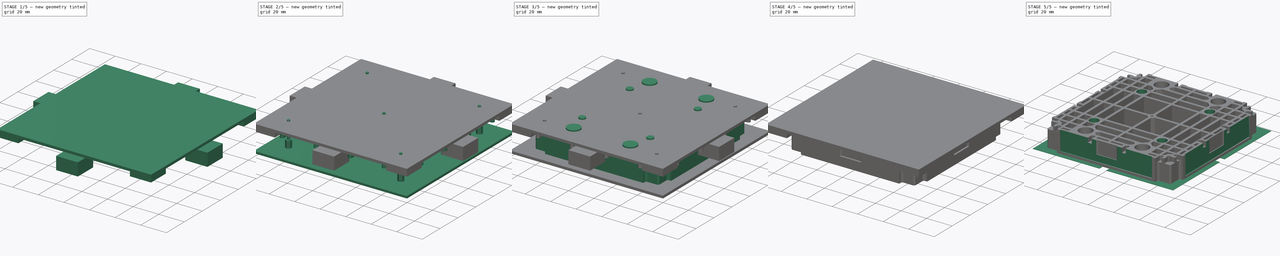
[diagram: build sequence overview — one tinted view per stage of 5, left to right]
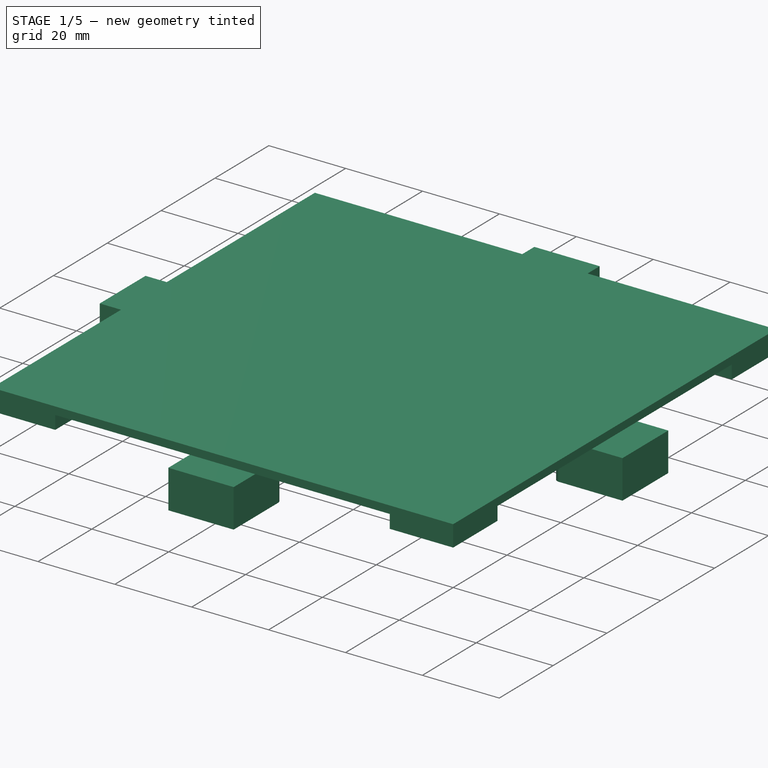
[diagram: stage 1 of 5 — iso view after this stage's code; geometry added in this stage tinted green]
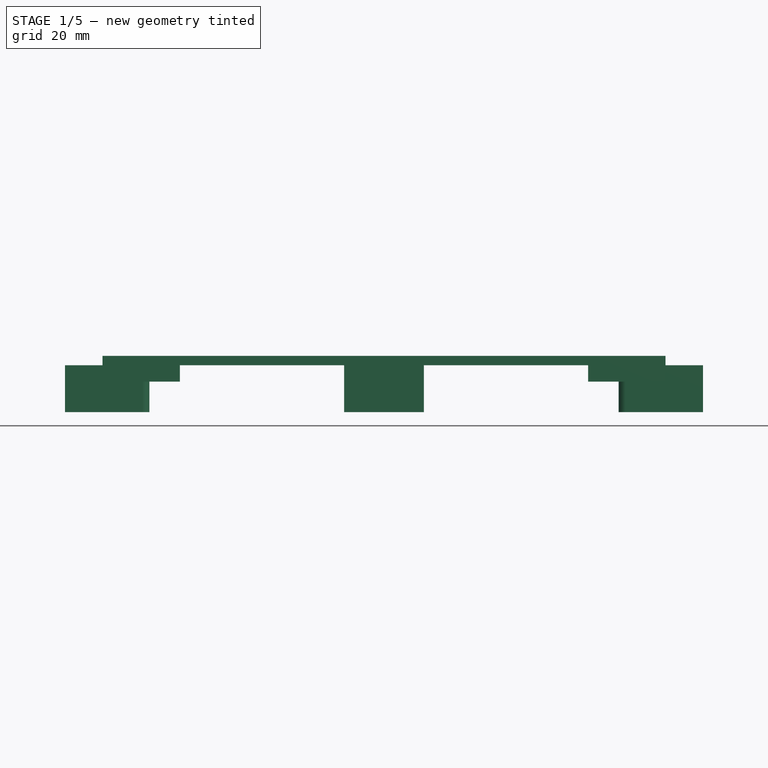
[diagram: stage 1 of 5 — front view after this stage's code; geometry added in this stage tinted green]
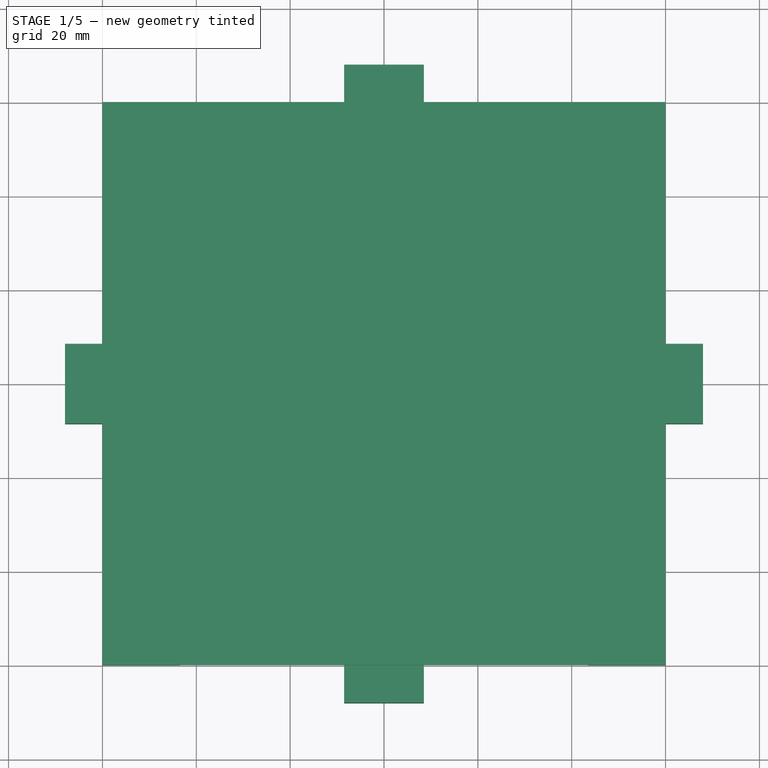
[diagram: stage 1 of 5 — top view after this stage's code; geometry added in this stage tinted green]
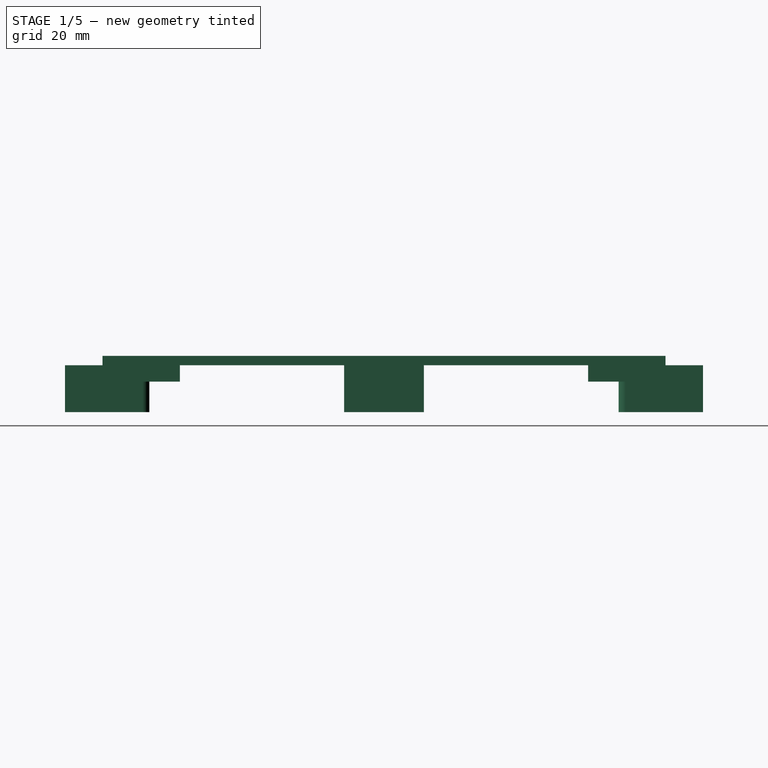
[diagram: stage 1 of 5 — right view after this stage's code; geometry added in this stage tinted green]
FCSTD DOCUMENT  (FreeCAD 0.18R4 (GitTag))
Label: routing_template_resin_cnc
License: All rights reserved
LicenseURL: http://en.wikipedia.org/wiki/All_rights_reserved
objects: Sketcher::SketchObject×19, PartDesign::Pad×16, PartDesign::Body×7, PartDesign::Boolean×6, PartDesign::PolarPattern×5, PartDesign::Pocket×3, PartDesign::Mirrored×2, PartDesign::Chamfer×1, PartDesign::MultiTransform×1, App::VRMLObject×1, App::Part×1
note: 79 computed .brp shape members not serialized (recipe doc carries the construction recipe); baked Part::Feature solids carry a one-line shape summary decoded from their .brp

FEATURE [Sketcher::SketchObject] Sketch013
  AttachmentOffset = pos=(0,0,17) rot=(0,0,1;0rad)
  MapMode = 5
  Placement = pos=(0,0,17) rot=(0,0,1;0rad)
  Support = -> [XY_Plane005]
  sketch-geometry (5):
    g0: LineSegment StartX=-60 StartY=60 StartZ=0 EndX=-60 EndY=-60 EndZ=0
    g1: LineSegment StartX=-60 StartY=-60 StartZ=0 EndX=60 EndY=-60 EndZ=0
    g2: LineSegment StartX=60 StartY=-60 StartZ=0 EndX=60 EndY=60 EndZ=0
    g3: LineSegment StartX=60 StartY=60 StartZ=0 EndX=-60 EndY=60 EndZ=0
    g4: Circle [constr] CenterX=0 CenterY=0 CenterZ=0 NormalX=0 NormalY=0 NormalZ=1 AngleXU=0 Radius=84.8528
  constraints (14):
    c: Coincident(g0,g1)
    c: Coincident(g1,g2)
    c: Coincident(g2,g3)
    c: Coincident(g3,g0)
    c: Equal(g0,g1)
    c: Equal(g0,g2)
    c: Equal(g0,g3)
    c: PointOnObject(g0,g4)
    c: PointOnObject(g1,g4)
    c: PointOnObject(g2,g4)
    c: PointOnObject(g3,g4)
    c: Coincident(g4,g-1)
    c: Horizontal(g3)
    c: DistanceX(g3,g3) = 120
FEATURE [PartDesign::Pad] Pad011
  Length = 2
  Length2 = 100
  Profile = -> Sketch013
  Type = 0
FEATURE [Sketcher::SketchObject] Sketch012
  MapMode = 5
  Placement = pos=(0,0,17) rot=(1,0,0;3.14159rad)
  Support = -> [Pad011]
  sketch-geometry (8):
    g0: ArcOfCircle CenterX=-7 CenterY=51.5 CenterZ=0 NormalX=0 NormalY=0 NormalZ=1 AngleXU=0 Radius=1.5 StartAngle=3.14159 EndAngle=4.71239
    g1: ArcOfCircle CenterX=7 CenterY=51.5 CenterZ=0 NormalX=0 NormalY=0 NormalZ=1 AngleXU=0 Radius=1.5 StartAngle=4.71239 EndAngle=6.28319
    g2: LineSegment StartX=-7 StartY=50 StartZ=0 EndX=7 EndY=50 EndZ=0
    g3: LineSegment [constr] StartX=-7 StartY=51.5 StartZ=0 EndX=-9e-16 EndY=0 EndZ=0
    g4: LineSegment [constr] StartX=0 StartY=0 StartZ=0 EndX=7 EndY=51.5 EndZ=0
    g5: LineSegment StartX=-8.5 StartY=51.5 StartZ=0 EndX=-8.5 EndY=67.9891 EndZ=0
    g6: LineSegment StartX=-8.5 StartY=67.9891 StartZ=0 EndX=8.5 EndY=67.9891 EndZ=0
    g7: LineSegment StartX=8.5 StartY=67.9891 StartZ=0 EndX=8.5 EndY=51.5 EndZ=0
  constraints (19):
    c: Tangent(g0,g2) = -1.5708
    c: Tangent(g2,g1) = -1.5708
    c: Horizontal(g2)
    c: Equal(g0,g1)
    c: Coincident(g3,g-1)
    c: Coincident(g3,g4)
    c: Equal(g4,g3)
    c: Diameter(g0) = 3
    c: Tangent(g0,g5) = 1.5708
    c: Coincident(g5,g6)
    c: Horizontal(g6)
    c: Coincident(g6,g7)
    c: Tangent(g7,g1) = 1.5708
    c: Vertical(g7)
    c: Vertical(g5)
    c: Coincident(g0,g3)
    c: Coincident(g1,g4)
    c: DistanceX(g0,g1) = 14
    c: DistanceY(g-1,g0) = 50
FEATURE [PartDesign::Pad] Pad012
  BaseFeature = -> Pad011
  Length = 10
  Length2 = 100
  Profile = -> Sketch012
  Type = 0
FEATURE [PartDesign::PolarPattern] PolarPattern001
  Angle = 360
  Axis = -> Z_Axis005
  BaseFeature = -> Pad012
  Occurrences = 4
  Originals = -> [Pad012]
FEATURE [Sketcher::SketchObject] Sketch017
  AttachmentOffset = pos=(0,0,17) rot=(0,0,1;0rad)
  MapMode = 5
  Placement = pos=(0,0,17) rot=(0,0,1;0rad)
  Support = -> [XY_Plane006]
  sketch-geometry (5):
    g0: LineSegment StartX=-60 StartY=60 StartZ=0 EndX=-60 EndY=-60 EndZ=0
    g1: LineSegment StartX=-60 StartY=-60 StartZ=0 EndX=60 EndY=-60 EndZ=0
    g2: LineSegment StartX=60 StartY=-60 StartZ=0 EndX=60 EndY=60 EndZ=0
    g3: LineSegment StartX=60 StartY=60 StartZ=0 EndX=-60 EndY=60 EndZ=0
    g4: Circle [constr] CenterX=0 CenterY=0 CenterZ=0 NormalX=0 NormalY=0 NormalZ=1 AngleXU=0 Radius=84.8528
  constraints (14):
    c: Coincident(g0,g1)
    c: Coincident(g1,g2)
    c: Coincident(g2,g3)
    c: Coincident(g3,g0)
    c: Equal(g0,g1)
    c: Equal(g0,g2)
    c: Equal(g0,g3)
    c: PointOnObject(g0,g4)
    c: PointOnObject(g1,g4)
    c: PointOnObject(g2,g4)
    c: PointOnObject(g3,g4)
    c: Coincident(g4,g-1)
    c: Horizontal(g3)
    c: DistanceX(g3,g3) = 120
FEATURE [PartDesign::Pad] Pad013
  Length = 2
  Length2 = 100
  Profile = -> Sketch017
  Type = 0
FEATURE [Sketcher::SketchObject] Sketch016
  MapMode = 5
  Placement = pos=(0,0,17) rot=(1,0,0;3.14159rad)
  Support = -> [Pad013]
  sketch-geometry (7):
    g0: LineSegment StartX=-60 StartY=60 StartZ=0 EndX=-43.5 EndY=60 EndZ=0
    g1: LineSegment StartX=-43.5 StartY=60 StartZ=0 EndX=-43.5 EndY=45 EndZ=0
    g2: LineSegment StartX=-45 StartY=43.5 StartZ=0 EndX=-60 EndY=43.5 EndZ=0
    g3: LineSegment StartX=-60 StartY=43.5 StartZ=0 EndX=-60 EndY=60 EndZ=0
    g4: LineSegment [constr] StartX=-60 StartY=43.5 StartZ=0 EndX=0 EndY=-7.1e-15 EndZ=0
    g5: LineSegment [constr] StartX=0 StartY=0 StartZ=0 EndX=-43.5 EndY=60 EndZ=0
    g6: ArcOfCircle CenterX=-45 CenterY=45 CenterZ=0 NormalX=0 NormalY=0 NormalZ=1 AngleXU=0 Radius=1.5 StartAngle=4.71239 EndAngle=6.28319
  constraints (18):
    c: Coincident(g0,g1)
    c: Coincident(g2,g3)
    c: Coincident(g3,g0)
    c: Horizontal(g0)
    c: Horizontal(g2)
    c: Vertical(g1)
    c: Vertical(g3)
    c: Coincident(g4,g-1)
    c: Coincident(g4,g5)
    c: Coincident(g5,g0)
    c: Equal(g5,g4)
    c: Coincident(g2,g4)
    c: Equal(g2,g1)
    c: Tangent(g2,g6) = 1.5708
    c: Tangent(g1,g6) = 1.5708
    c: Diameter(g6) = 3
    c: DistanceY(g-1,g0) = 60
    c: DistanceY(g-1,g2) = 43.5
FEATURE [PartDesign::Pad] Pad014
  BaseFeature = -> Pad013
  Length = 3.5
  Length2 = 100
  Profile = -> Sketch016
  Type = 0
FEATURE [PartDesign::PolarPattern] PolarPattern003
  Angle = 360
  Axis = -> Z_Axis006
  BaseFeature = -> Pad014
  Occurrences = 4
  Originals = -> [Pad014]
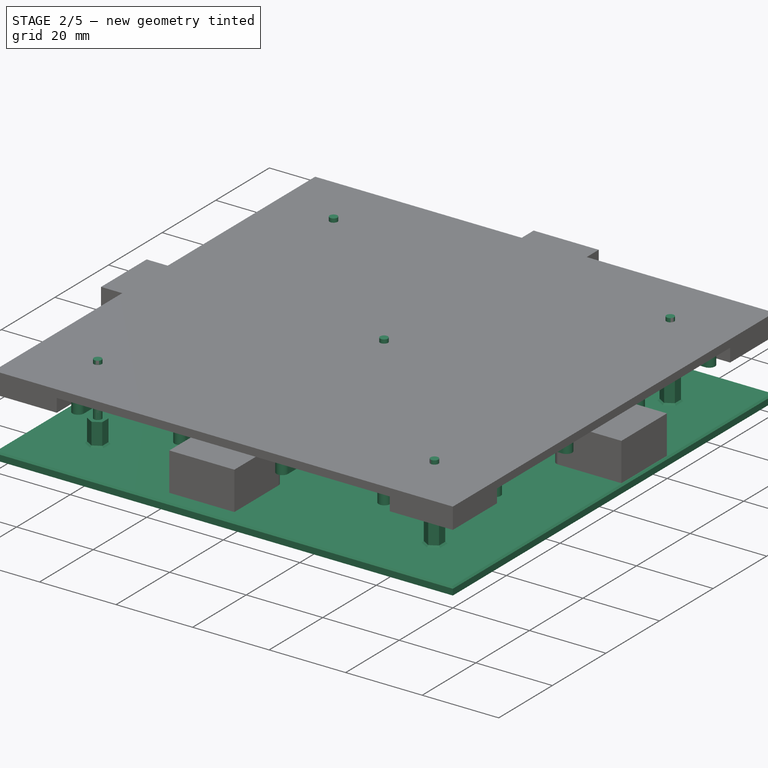
[diagram: stage 2 of 5 — iso view after this stage's code; geometry added in this stage tinted green]
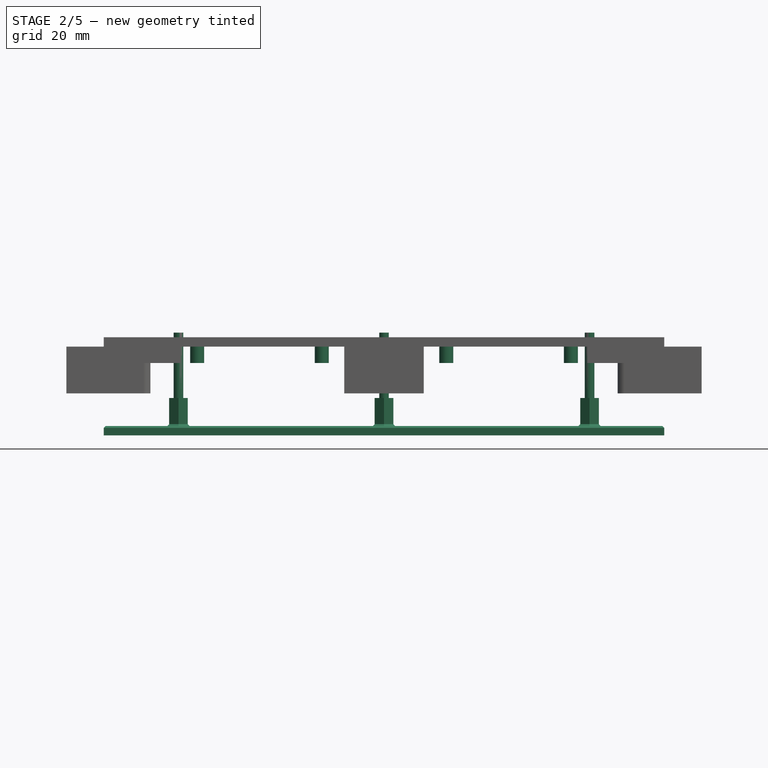
[diagram: stage 2 of 5 — front view after this stage's code; geometry added in this stage tinted green]
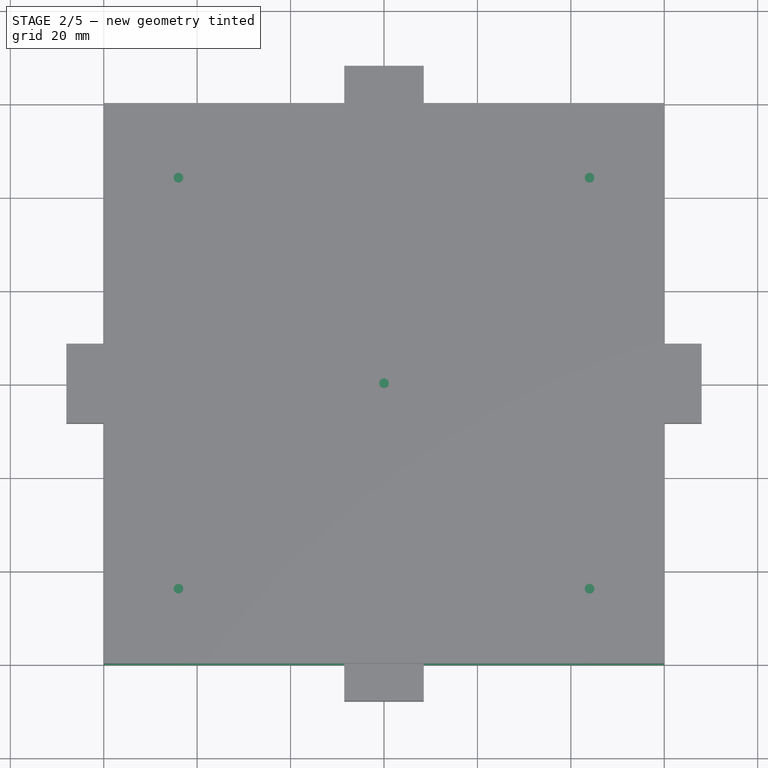
[diagram: stage 2 of 5 — top view after this stage's code; geometry added in this stage tinted green]
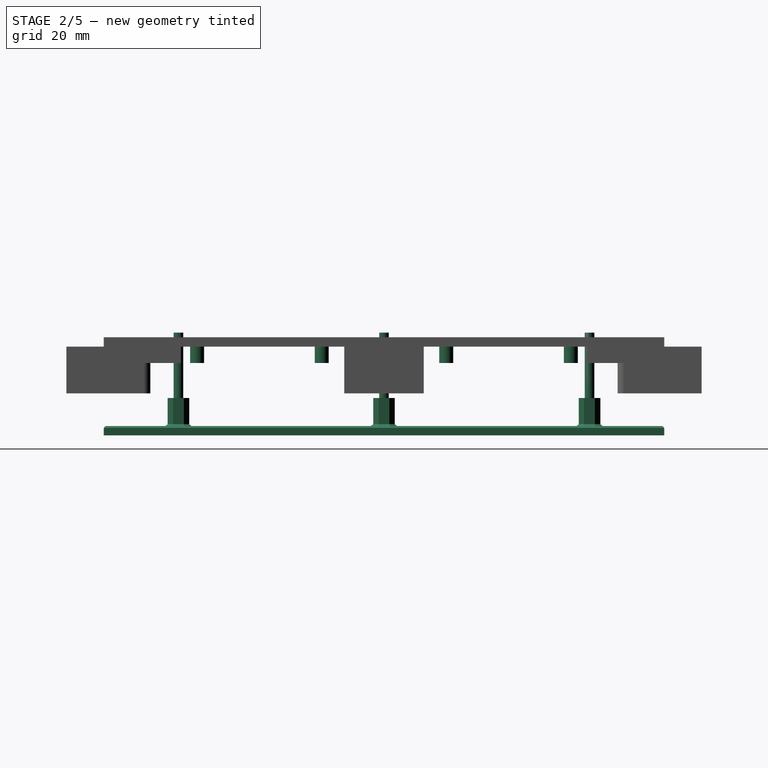
[diagram: stage 2 of 5 — right view after this stage's code; geometry added in this stage tinted green]
FEATURE [Sketcher::SketchObject] Sketch007
  MapMode = 5
  Support = -> [XY_Plane003]
  sketch-geometry (5):
    g0: LineSegment StartX=-60 StartY=-60 StartZ=0 EndX=60 EndY=-60 EndZ=0
    g1: LineSegment StartX=60 StartY=-60 StartZ=0 EndX=60 EndY=60 EndZ=0
    g2: LineSegment StartX=60 StartY=60 StartZ=0 EndX=-60 EndY=60 EndZ=0
    g3: LineSegment StartX=-60 StartY=60 StartZ=0 EndX=-60 EndY=-60 EndZ=0
    g4: Circle [constr] CenterX=0 CenterY=0 CenterZ=0 NormalX=0 NormalY=0 NormalZ=1 AngleXU=0 Radius=84.8528
  constraints (14):
    c: Coincident(g0,g1)
    c: Coincident(g1,g2)
    c: Coincident(g2,g3)
    c: Coincident(g3,g0)
    c: Equal(g0,g1)
    c: Equal(g0,g2)
    c: Equal(g0,g3)
    c: PointOnObject(g0,g4)
    c: PointOnObject(g1,g4)
    c: PointOnObject(g2,g4)
    c: PointOnObject(g3,g4)
    c: Coincident(g4,g-1)
    c: Horizontal(g0)
    c: DistanceX(g0,g0) = 120
FEATURE [PartDesign::Pad] Pad006
  Length = 2
  Length2 = 100
  Profile = -> Sketch007
  Reversed = true
  Type = 0
FEATURE [Sketcher::SketchObject] Sketch008
  MapMode = 5
  Support = -> [Pad006]
  sketch-geometry (12):
    g0: LineSegment [constr] StartX=-44 StartY=44 StartZ=0 EndX=44 EndY=44 EndZ=0
    g1: LineSegment [constr] StartX=44 StartY=44 StartZ=0 EndX=44 EndY=-44 EndZ=0
    g2: LineSegment [constr] StartX=44 StartY=-44 StartZ=0 EndX=-44 EndY=-44 EndZ=0
    g3: LineSegment [constr] StartX=-44 StartY=-44 StartZ=0 EndX=-44 EndY=44 EndZ=0
    g4: Circle CenterX=-44 CenterY=44 CenterZ=0 NormalX=0 NormalY=0 NormalZ=1 AngleXU=0 Radius=1.025
    g5: Circle CenterX=44 CenterY=44 CenterZ=0 NormalX=0 NormalY=0 NormalZ=1 AngleXU=0 Radius=1.025
    g6: Circle CenterX=-44 CenterY=-44 CenterZ=0 NormalX=0 NormalY=0 NormalZ=1 AngleXU=0 Radius=1.025
    g7: Circle CenterX=44 CenterY=-44 CenterZ=0 NormalX=0 NormalY=0 NormalZ=1 AngleXU=0 Radius=1.025
    g8: LineSegment [constr] StartX=-44 StartY=44 StartZ=0 EndX=0 EndY=0 EndZ=0
    g9: LineSegment [constr] StartX=0 StartY=0 StartZ=0 EndX=44 EndY=44 EndZ=0
    g10: LineSegment [constr] StartX=0 StartY=0 StartZ=0 EndX=-44 EndY=-44 EndZ=0
    g11: Circle CenterX=0 CenterY=0 CenterZ=0 NormalX=0 NormalY=0 NormalZ=1 AngleXU=0 Radius=1.025
  constraints (28):
    c: Coincident(g0,g1)
    c: Coincident(g1,g2)
    c: Coincident(g2,g3)
    c: Coincident(g3,g0)
    c: Horizontal(g0)
    c: Horizontal(g2)
    c: Vertical(g1)
    c: Vertical(g3)
    c: Coincident(g4,g0)
    c: Coincident(g5,g0)
    c: Coincident(g6,g2)
    c: Coincident(g7,g1)
    c: Equal(g5,g4)
    c: Equal(g4,g6)
    c: Equal(g6,g7)
    c: Coincident(g8,g4)
    c: Coincident(g8,g-1)
    c: Coincident(g8,g9)
    c: Coincident(g9,g5)
    c: Coincident(g-1,g10)
    c: Coincident(g10,g6)
    c: Equal(g10,g8)
    c: Equal(g8,g9)
    c: Diameter(g4) = 2.05
    c: Equal(g0,g3)
    c: DistanceX(g0,g0) = 88
    c: Coincident(g11,g-1)
    c: Equal(g11,g4)
FEATURE [PartDesign::Pad] Pad007
  BaseFeature = -> Pad006
  Length = 20
  Length2 = 100
  Profile = -> Sketch008
  Type = 0
FEATURE [Sketcher::SketchObject] Sketch009
  ExternalGeometry = -> [Pad007]
  MapMode = 5
  Support = -> [Pad007]
  sketch-geometry (35):
    g0: LineSegment StartX=-42 StartY=42.8453 StartZ=0 EndX=-42 EndY=45.1547 EndZ=0
    g1: LineSegment StartX=-42 StartY=45.1547 StartZ=0 EndX=-44 EndY=46.3094 EndZ=0
    g2: LineSegment StartX=-44 StartY=46.3094 StartZ=0 EndX=-46 EndY=45.1547 EndZ=0
    g3: LineSegment StartX=-46 StartY=45.1547 StartZ=0 EndX=-46 EndY=42.8453 EndZ=0
    g4: LineSegment StartX=-46 StartY=42.8453 StartZ=0 EndX=-44 EndY=41.6906 EndZ=0
    g5: LineSegment StartX=-44 StartY=41.6906 StartZ=0 EndX=-42 EndY=42.8453 EndZ=0
    g6: Circle [constr] CenterX=-44 CenterY=44 CenterZ=0 NormalX=0 NormalY=0 NormalZ=1 AngleXU=0 Radius=2.3094
    g7: LineSegment StartX=42 StartY=45.1547 StartZ=0 EndX=42 EndY=42.8453 EndZ=0
    g8: LineSegment StartX=42 StartY=42.8453 StartZ=0 EndX=44 EndY=41.6906 EndZ=0
    g9: LineSegment StartX=44 StartY=41.6906 StartZ=0 EndX=46 EndY=42.8453 EndZ=0
    g10: LineSegment StartX=46 StartY=42.8453 StartZ=0 EndX=46 EndY=45.1547 EndZ=0
    g11: LineSegment StartX=46 StartY=45.1547 StartZ=0 EndX=44 EndY=46.3094 EndZ=0
    g12: LineSegment StartX=44 StartY=46.3094 StartZ=0 EndX=42 EndY=45.1547 EndZ=0
    g13: Circle [constr] CenterX=44 CenterY=44 CenterZ=0 NormalX=0 NormalY=0 NormalZ=1 AngleXU=0 Radius=2.3094
    g14: LineSegment StartX=-42 StartY=-45.1547 StartZ=0 EndX=-42 EndY=-42.8453 EndZ=0
    g15: LineSegment StartX=-42 StartY=-42.8453 StartZ=0 EndX=-44 EndY=-41.6906 EndZ=0
    g16: LineSegment StartX=-44 StartY=-41.6906 StartZ=0 EndX=-46 EndY=-42.8453 EndZ=0
    g17: LineSegment StartX=-46 StartY=-42.8453 StartZ=0 EndX=-46 EndY=-45.1547 EndZ=0
    g18: LineSegment StartX=-46 StartY=-45.1547 StartZ=0 EndX=-44 EndY=-46.3094 EndZ=0
    g19: LineSegment StartX=-44 StartY=-46.3094 StartZ=0 EndX=-42 EndY=-45.1547 EndZ=0
    g20: Circle [constr] CenterX=-44 CenterY=-44 CenterZ=0 NormalX=0 NormalY=0 NormalZ=1 AngleXU=0 Radius=2.3094
    g21: LineSegment StartX=46 StartY=-45.1547 StartZ=0 EndX=46 EndY=-42.8453 EndZ=0
    g22: LineSegment StartX=46 StartY=-42.8453 StartZ=0 EndX=44 EndY=-41.6906 EndZ=0
    g23: LineSegment StartX=44 StartY=-41.6906 StartZ=0 EndX=42 EndY=-42.8453 EndZ=0
    g24: LineSegment StartX=42 StartY=-42.8453 StartZ=0 EndX=42 EndY=-45.1547 EndZ=0
    g25: LineSegment StartX=42 StartY=-45.1547 StartZ=0 EndX=44 EndY=-46.3094 EndZ=0
    g26: LineSegment StartX=44 StartY=-46.3094 StartZ=0 EndX=46 EndY=-45.1547 EndZ=0
    g27: Circle [constr] CenterX=44 CenterY=-44 CenterZ=0 NormalX=0 NormalY=0 NormalZ=1 AngleXU=0 Radius=2.3094
    g28: LineSegment StartX=2 StartY=-1.1547 StartZ=0 EndX=2 EndY=1.1547 EndZ=0
    g29: LineSegment StartX=2 StartY=1.1547 StartZ=0 EndX=2e-16 EndY=2.3094 EndZ=0
    g30: LineSegment StartX=2e-16 StartY=2.3094 StartZ=0 EndX=-2 EndY=1.1547 EndZ=0
    g31: LineSegment StartX=-2 StartY=1.1547 StartZ=0 EndX=-2 EndY=-1.1547 EndZ=0
    g32: LineSegment StartX=-2 StartY=-1.1547 StartZ=0 EndX=-2e-16 EndY=-2.3094 EndZ=0
    g33: LineSegment StartX=-2e-16 StartY=-2.3094 StartZ=0 EndX=2 EndY=-1.1547 EndZ=0
    g34: Circle [constr] CenterX=0 CenterY=0 CenterZ=0 NormalX=0 NormalY=0 NormalZ=1 AngleXU=0 Radius=2.3094
  constraints (80):
    c: Coincident(g0,g1)
    c: Coincident(g1,g2)
    c: Coincident(g2,g3)
    c: Coincident(g3,g4)
    c: Coincident(g4,g5)
    c: Coincident(g5,g0)
    c: Equal(g0, g1-g5) x5
    c: PointOnObject(g0,g6)
    c: PointOnObject(g1,g6)
    c: PointOnObject(g2,g6)
    c: PointOnObject(g3,g6)
    c: PointOnObject(g4,g6)
    c: PointOnObject(g5,g6)
    c: Coincident(g6,g-3)
    c: Coincident(g7,g8)
    c: Coincident(g8,g9)
    c: Coincident(g9,g10)
    c: Coincident(g10,g11)
    c: Coincident(g11,g12)
    c: Coincident(g12,g7)
    c: Equal(g7, g8-g12) x5
    c: PointOnObject(g7,g13)
    c: PointOnObject(g8,g13)
    c: PointOnObject(g9,g13)
    c: PointOnObject(g10,g13)
    c: PointOnObject(g11,g13)
    c: PointOnObject(g12,g13)
    c: Coincident(g13,g-4)
    c: Coincident(g14,g15)
    c: Coincident(g15,g16)
    c: Coincident(g16,g17)
    c: Coincident(g17,g18)
    c: Coincident(g18,g19)
    c: Coincident(g19,g14)
    c: Equal(g14, g15-g19) x5
    c: PointOnObject(g14,g20)
    c: PointOnObject(g15,g20)
    c: PointOnObject(g16,g20)
    c: PointOnObject(g17,g20)
    c: PointOnObject(g18,g20)
    c: PointOnObject(g19,g20)
    c: Coincident(g20,g-5)
    c: Coincident(g21,g22)
    c: Coincident(g22,g23)
    c: Coincident(g23,g24)
    c: Coincident(g24,g25)
    c: Coincident(g25,g26)
    c: Coincident(g26,g21)
    c: Equal(g21, g22-g26) x5
    c: PointOnObject(g21,g27)
    c: PointOnObject(g22,g27)
    c: PointOnObject(g23,g27)
    c: PointOnObject(g24,g27)
    c: PointOnObject(g25,g27)
    c: PointOnObject(g26,g27)
    c: Coincident(g27,g-6)
    c: Coincident(g28,g29)
    c: Coincident(g29,g30)
    c: Coincident(g30,g31)
    c: Coincident(g31,g32)
    c: Coincident(g32,g33)
    c: Coincident(g33,g28)
    c: Equal(g28, g29-g33) x5
    c: PointOnObject(g28,g34)
    c: PointOnObject(g29,g34)
    c: PointOnObject(g30,g34)
    c: PointOnObject(g31,g34)
    c: PointOnObject(g32,g34)
    c: PointOnObject(g33,g34)
    c: Coincident(g34,g-1)
    c: Vertical(g28)
    c: Vertical(g14)
    c: Vertical(g21)
    c: Vertical(g10)
    c: Vertical(g0)
    c: Equal(g0,g10)
    c: Equal(g10,g28)
    c: Equal(g28,g14)
    c: Equal(g14,g21)
    c: DistanceX(g2,g0) = 4
FEATURE [PartDesign::Pad] Pad008
  BaseFeature = -> Pad007
  Length = 6
  Length2 = 100
  Profile = -> Sketch009
  Type = 0
FEATURE [PartDesign::Chamfer] Chamfer
  Base = -> Pad008 [Face4]
  BaseFeature = -> Pad008
  Size = 0.4
FEATURE [Sketcher::SketchObject] Sketch010
  AttachmentOffset = pos=(0,0,17) rot=(0,0,1;0rad)
  MapMode = 5
  Placement = pos=(0,0,17) rot=(0,0,1;0rad)
  Support = -> [XY_Plane004]
  sketch-geometry (5):
    g0: LineSegment StartX=-60 StartY=60 StartZ=0 EndX=-60 EndY=-60 EndZ=0
    g1: LineSegment StartX=-60 StartY=-60 StartZ=0 EndX=60 EndY=-60 EndZ=0
    g2: LineSegment StartX=60 StartY=-60 StartZ=0 EndX=60 EndY=60 EndZ=0
    g3: LineSegment StartX=60 StartY=60 StartZ=0 EndX=-60 EndY=60 EndZ=0
    g4: Circle [constr] CenterX=0 CenterY=0 CenterZ=0 NormalX=0 NormalY=0 NormalZ=1 AngleXU=0 Radius=84.8528
  constraints (14):
    c: Coincident(g0,g1)
    c: Coincident(g1,g2)
    c: Coincident(g2,g3)
    c: Coincident(g3,g0)
    c: Equal(g0,g1)
    c: Equal(g0,g2)
    c: Equal(g0,g3)
    c: PointOnObject(g0,g4)
    c: PointOnObject(g1,g4)
    c: PointOnObject(g2,g4)
    c: PointOnObject(g3,g4)
    c: Coincident(g4,g-1)
    c: Horizontal(g3)
    c: DistanceX(g3,g3) = 120
FEATURE [PartDesign::Pad] Pad009
  Length = 2
  Length2 = 100
  Profile = -> Sketch010
  Type = 0
FEATURE [Sketcher::SketchObject] Sketch011
  MapMode = 5
  Placement = pos=(0,0,17) rot=(1,0,0;3.14159rad)
  Support = -> [Pad009]
  sketch-geometry (21):
    g0: ArcOfCircle CenterX=-40.005 CenterY=47 CenterZ=0 NormalX=0 NormalY=0 NormalZ=1 AngleXU=0 Radius=1.5 StartAngle=3.14159 EndAngle=6.28319
    g1: ArcOfCircle CenterX=-40.005 CenterY=57 CenterZ=0 NormalX=0 NormalY=0 NormalZ=1 AngleXU=0 Radius=1.5 StartAngle=8e-16 EndAngle=3.14159
    g2: LineSegment StartX=-38.505 StartY=47 StartZ=0 EndX=-38.505 EndY=57 EndZ=0
    g3: LineSegment StartX=-41.505 StartY=47 StartZ=0 EndX=-41.505 EndY=57 EndZ=0
    g4: ArcOfCircle CenterX=-13.335 CenterY=47 CenterZ=0 NormalX=0 NormalY=0 NormalZ=1 AngleXU=0 Radius=1.5 StartAngle=3.14159 EndAngle=6.28319
    g5: ArcOfCircle CenterX=-13.335 CenterY=57 CenterZ=0 NormalX=0 NormalY=0 NormalZ=1 AngleXU=0 Radius=1.5 StartAngle=-9e-16 EndAngle=3.14159
    g6: LineSegment StartX=-11.835 StartY=47 StartZ=0 EndX=-11.835 EndY=57 EndZ=0
    g7: LineSegment StartX=-14.835 StartY=47 StartZ=0 EndX=-14.835 EndY=57 EndZ=0
    g8: ArcOfCircle CenterX=13.335 CenterY=47 CenterZ=0 NormalX=0 NormalY=0 NormalZ=1 AngleXU=0 Radius=1.5 StartAngle=3.14159 EndAngle=6.28319
    g9: ArcOfCircle CenterX=13.335 CenterY=57 CenterZ=0 NormalX=0 NormalY=0 NormalZ=1 AngleXU=0 Radius=1.5 StartAngle=1.9e-15 EndAngle=3.14159
    g10: LineSegment StartX=14.835 StartY=47 StartZ=0 EndX=14.835 EndY=57 EndZ=0
    g11: LineSegment StartX=11.835 StartY=47 StartZ=0 EndX=11.835 EndY=57 EndZ=0
    g12: ArcOfCircle CenterX=40.005 CenterY=47 CenterZ=0 NormalX=0 NormalY=0 NormalZ=1 AngleXU=0 Radius=1.5 StartAngle=3.14159 EndAngle=6.28319
    g13: ArcOfCircle CenterX=40.005 CenterY=57 CenterZ=0 NormalX=0 NormalY=0 NormalZ=1 AngleXU=0 Radius=1.5 StartAngle=1.9e-15 EndAngle=3.14159
    g14: LineSegment StartX=41.505 StartY=47 StartZ=0 EndX=41.505 EndY=57 EndZ=0
    g15: LineSegment StartX=38.505 StartY=47 StartZ=0 EndX=38.505 EndY=57 EndZ=0
    g16: LineSegment [constr] StartX=-40.005 StartY=47 StartZ=0 EndX=-13.335 EndY=47 EndZ=0
    g17: LineSegment [constr] StartX=13.335 StartY=47 StartZ=0 EndX=-13.335 EndY=47 EndZ=0
    g18: LineSegment [constr] StartX=13.335 StartY=47 StartZ=0 EndX=40.005 EndY=47 EndZ=0
    g19: LineSegment [constr] StartX=-13.335 StartY=47 StartZ=0 EndX=0 EndY=0 EndZ=0
    g20: LineSegment [constr] StartX=0 StartY=0 StartZ=0 EndX=13.335 EndY=47 EndZ=0
  constraints (50):
    c: Tangent(g0,g3) = 1.5708
    c: Tangent(g0,g2) = -1.5708
    c: Tangent(g2,g1) = -1.5708
    c: Tangent(g3,g1) = 1.5708
    c: Vertical(g2)
    c: Equal(g0,g1)
    c: Tangent(g4,g7) = 1.5708
    c: Tangent(g4,g6) = -1.5708
    c: Tangent(g6,g5) = -1.5708
    c: Tangent(g7,g5) = 1.5708
    c: Vertical(g6)
    c: Equal(g4,g5)
    c: Tangent(g8,g11) = 1.5708
    c: Tangent(g8,g10) = -1.5708
    c: Tangent(g10,g9) = -1.5708
    c: Tangent(g11,g9) = 1.5708
    c: Vertical(g10)
    c: Equal(g8,g9)
    c: Tangent(g12,g15) = 1.5708
    c: Tangent(g12,g14) = -1.5708
    c: Tangent(g14,g13) = -1.5708
    c: Tangent(g15,g13) = 1.5708
    c: Vertical(g14)
    c: Equal(g12,g13)
    c: Equal(g2,g6)
    c: Equal(g6,g10)
    c: Equal(g10,g14)
    c: Coincident(g16,g0)
    c: Coincident(g16,g4)
    c: Coincident(g17,g8)
    c: Coincident(g17,g4)
    c: Horizontal(g17)
    c: Coincident(g18,g8)
    c: Coincident(g18,g12)
    c: Horizontal(g18)
    c: Horizontal(g16)
    c: Equal(g16,g17)
    c: Equal(g17,g18)
    c: Equal(g0,g4)
    c: Equal(g4,g8)
    c: Equal(g8,g12)
    c: Coincident(g19,g4)
    c: Coincident(g19,g-1)
    c: Coincident(g19,g20)
    c: Coincident(g20,g8)
    c: Equal(g20,g19)
    c: DistanceX(g17,g17) = 26.67
    c: Diameter(g4) = 3
    c: DistanceY(g-1,g4) = 47
    c: DistanceY(g3,g3) = 10
FEATURE [PartDesign::Pad] Pad010
  BaseFeature = -> Pad009
  Length = 3.5
  Length2 = 100
  Profile = -> Sketch011
  Type = 0
FEATURE [PartDesign::PolarPattern] PolarPattern
  Angle = 360
  Axis = -> Z_Axis004
  BaseFeature = -> Pad010
  Occurrences = 4
  Originals = -> [Pad010]
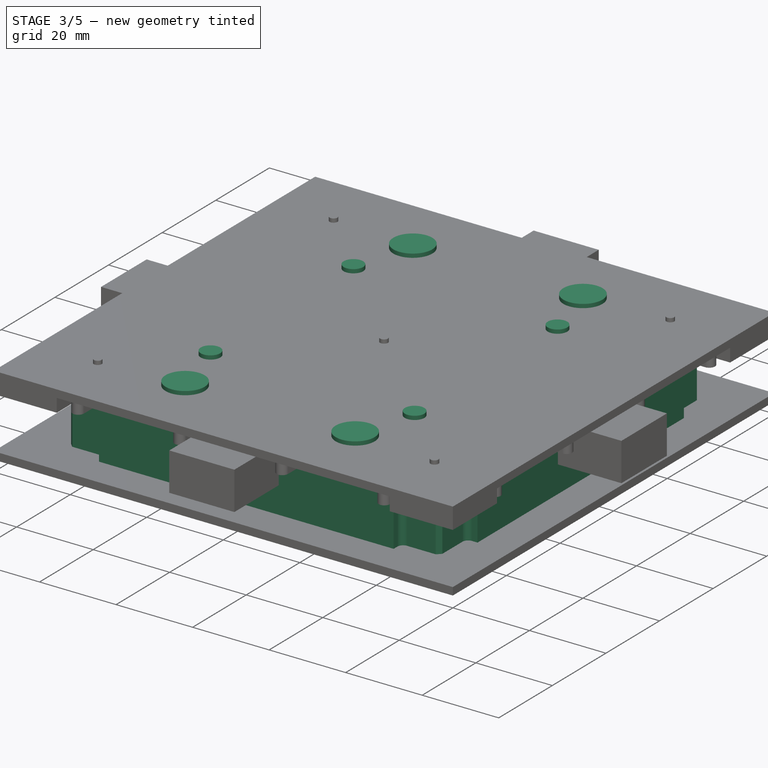
[diagram: stage 3 of 5 — iso view after this stage's code; geometry added in this stage tinted green]
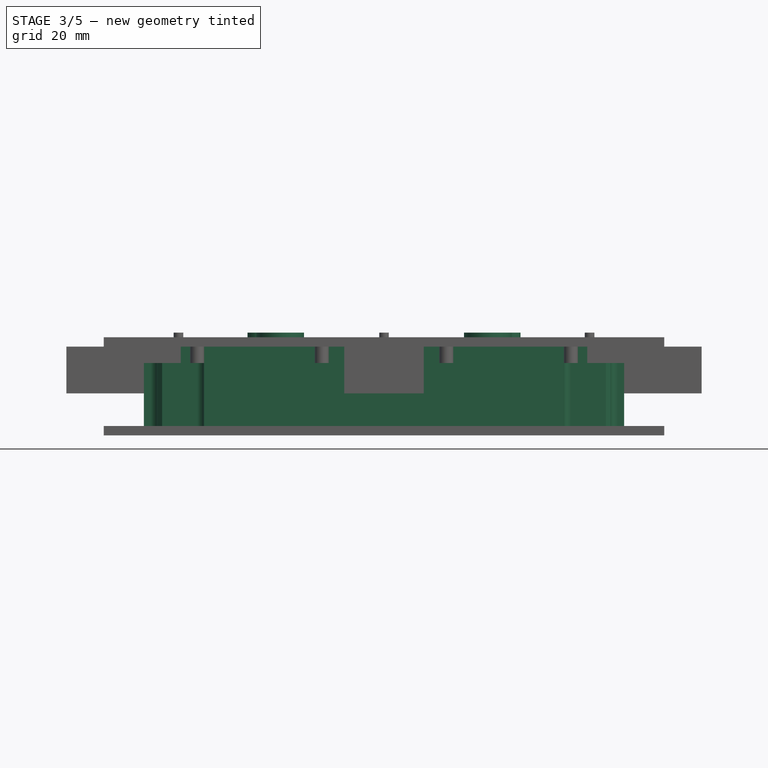
[diagram: stage 3 of 5 — front view after this stage's code; geometry added in this stage tinted green]
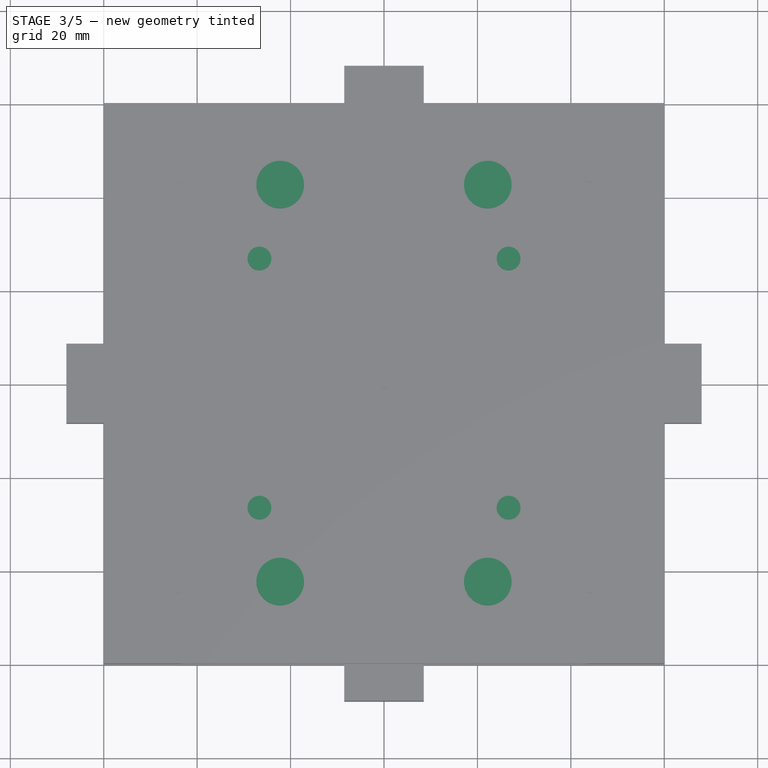
[diagram: stage 3 of 5 — top view after this stage's code; geometry added in this stage tinted green]
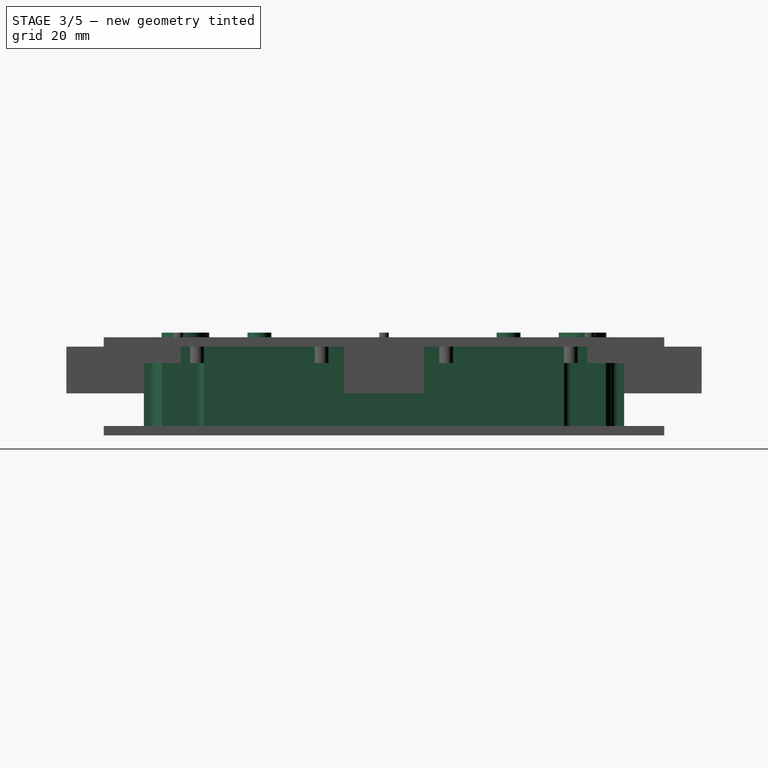
[diagram: stage 3 of 5 — right view after this stage's code; geometry added in this stage tinted green]
FEATURE [Sketcher::SketchObject] Sketch001
  MapMode = 2
  Support = -> [XY_Plane]
  expr: Constraints[16] = 51.4 * 2
  sketch-geometry (55):
    g0: LineSegment StartX=-38.505 StartY=51.4 StartZ=0 EndX=38.505 EndY=51.4 EndZ=0
    g1: LineSegment StartX=51.4 StartY=38.505 StartZ=0 EndX=51.4 EndY=-38.505 EndZ=0
    g2: LineSegment StartX=38.505 StartY=-51.4 StartZ=0 EndX=-38.505 EndY=-51.4 EndZ=0
    g3: LineSegment StartX=-51.4 StartY=-38.505 StartZ=0 EndX=-51.4 EndY=38.505 EndZ=0
    g4: ArcOfCircle [constr] CenterX=-38.505 CenterY=38.505 CenterZ=0 NormalX=0 NormalY=0 NormalZ=1 AngleXU=0 Radius=12.895 StartAngle=1.5708 EndAngle=3.14159
    g5: ArcOfCircle [constr] CenterX=38.505 CenterY=38.505 CenterZ=0 NormalX=0 NormalY=0 NormalZ=1 AngleXU=0 Radius=12.895 StartAngle=0 EndAngle=1.5708
    g6: ArcOfCircle [constr] CenterX=38.505 CenterY=-38.505 CenterZ=0 NormalX=0 NormalY=0 NormalZ=1 AngleXU=0 Radius=12.895 StartAngle=4.71239 EndAngle=6.28319
    g7: ArcOfCircle [constr] CenterX=-38.505 CenterY=-38.505 CenterZ=0 NormalX=0 NormalY=0 NormalZ=1 AngleXU=0 Radius=12.895 StartAngle=3.14159 EndAngle=4.71239
    g8: LineSegment [constr] StartX=-38.505 StartY=38.505 StartZ=0 EndX=0 EndY=0 EndZ=0
    g9: LineSegment [constr] StartX=0 StartY=0 StartZ=0 EndX=38.505 EndY=38.505 EndZ=0
    g10: LineSegment [constr] StartX=0 StartY=0 StartZ=0 EndX=-38.505 EndY=-38.505 EndZ=0
    g11: LineSegment [constr] StartX=-51.4 StartY=38.505 StartZ=0 EndX=-48.5 EndY=38.505 EndZ=0
    g12: LineSegment [constr] StartX=-48.5 StartY=38.505 StartZ=0 EndX=-48.5 EndY=47.5 EndZ=0
    g13: LineSegment StartX=-48.5 StartY=47.5 StartZ=0 EndX=-47.5 EndY=48.5 EndZ=0
    g14: LineSegment [constr] StartX=-47.5 StartY=48.5 StartZ=0 EndX=-38.505 EndY=48.5 EndZ=0
    g15: LineSegment [constr] StartX=-38.505 StartY=48.5 StartZ=0 EndX=-38.505 EndY=51.4 EndZ=0
    g16: LineSegment [constr] StartX=38.505 StartY=51.4 StartZ=0 EndX=38.505 EndY=48.5 EndZ=0
    g17: LineSegment [constr] StartX=38.505 StartY=48.5 StartZ=0 EndX=47.5 EndY=48.5 EndZ=0
    g18: LineSegment StartX=47.5 StartY=48.5 StartZ=0 EndX=48.5 EndY=47.5 EndZ=0
    g19: LineSegment [constr] StartX=48.5 StartY=47.5 StartZ=0 EndX=48.5 EndY=38.505 EndZ=0
    g20: LineSegment [constr] StartX=48.5 StartY=38.505 StartZ=0 EndX=51.4 EndY=38.505 EndZ=0
    g21: LineSegment [constr] StartX=51.4 StartY=-38.505 StartZ=0 EndX=48.5 EndY=-38.505 EndZ=0
    g22: LineSegment [constr] StartX=48.5 StartY=-38.505 StartZ=0 EndX=48.5 EndY=-47.5 EndZ=0
    g23: LineSegment StartX=48.5 StartY=-47.5 StartZ=0 EndX=47.5 EndY=-48.5 EndZ=0
    g24: LineSegment [constr] StartX=47.5 StartY=-48.5 StartZ=0 EndX=38.505 EndY=-48.5 EndZ=0
    g25: LineSegment [constr] StartX=38.505 StartY=-48.5 StartZ=0 EndX=38.505 EndY=-51.4 EndZ=0
    g26: LineSegment [constr] StartX=-51.4 StartY=-38.505 StartZ=0 EndX=-48.5 EndY=-38.505 EndZ=0
    g27: LineSegment [constr] StartX=-48.5 StartY=-38.505 StartZ=0 EndX=-48.5 EndY=-47.5 EndZ=0
    g28: LineSegment StartX=-48.5 StartY=-47.5 StartZ=0 EndX=-47.5 EndY=-48.5 EndZ=0
    g29: LineSegment [constr] StartX=-47.5 StartY=-48.5 StartZ=0 EndX=-38.505 EndY=-48.5 EndZ=0
    g30: LineSegment [constr] StartX=-38.505 StartY=-48.5 StartZ=0 EndX=-38.505 EndY=-51.4 EndZ=0
    g31: LineSegment StartX=-51.4 StartY=38.505 StartZ=0 EndX=-50 EndY=38.505 EndZ=0
    g32: LineSegment StartX=-48.5 StartY=40.005 StartZ=0 EndX=-48.5 EndY=47.5 EndZ=0
    g33: LineSegment StartX=-47.5 StartY=48.5 StartZ=0 EndX=-40.005 EndY=48.5 EndZ=0
    g34: LineSegment StartX=-38.505 StartY=50 StartZ=0 EndX=-38.505 EndY=51.4 EndZ=0
    g35: ArcOfCircle CenterX=-40.005 CenterY=50 CenterZ=0 NormalX=0 NormalY=0 NormalZ=1 AngleXU=0 Radius=1.5 StartAngle=4.71239 EndAngle=6.28319
    g36: ArcOfCircle CenterX=-50 CenterY=40.005 CenterZ=0 NormalX=0 NormalY=0 NormalZ=1 AngleXU=0 Radius=1.5 StartAngle=4.71239 EndAngle=6.28319
    g37: LineSegment StartX=38.505 StartY=51.4 StartZ=0 EndX=38.505 EndY=50 EndZ=0
    g38: LineSegment StartX=40.005 StartY=48.5 StartZ=0 EndX=47.5 EndY=48.5 EndZ=0
    g39: LineSegment StartX=48.5 StartY=47.5 StartZ=0 EndX=48.5 EndY=40.005 EndZ=0
    g40: LineSegment StartX=50 StartY=38.505 StartZ=0 EndX=51.4 EndY=38.505 EndZ=0
    g41: ArcOfCircle CenterX=40.005 CenterY=50 CenterZ=0 NormalX=0 NormalY=0 NormalZ=1 AngleXU=0 Radius=1.5 StartAngle=3.14159 EndAngle=4.71239
    g42: ArcOfCircle CenterX=50 CenterY=40.005 CenterZ=0 NormalX=0 NormalY=0 NormalZ=1 AngleXU=0 Radius=1.5 StartAngle=3.14159 EndAngle=4.71239
    g43: LineSegment StartX=48.5 StartY=-47.5 StartZ=0 EndX=48.5 EndY=-40.005 EndZ=0
    g44: LineSegment StartX=50 StartY=-38.505 StartZ=0 EndX=51.4 EndY=-38.505 EndZ=0
    g45: LineSegment StartX=47.5 StartY=-48.5 StartZ=0 EndX=40.005 EndY=-48.5 EndZ=0
    g46: LineSegment StartX=38.505 StartY=-50 StartZ=0 EndX=38.505 EndY=-51.4 EndZ=0
    g47: ArcOfCircle CenterX=50 CenterY=-40.005 CenterZ=0 NormalX=0 NormalY=0 NormalZ=1 AngleXU=0 Radius=1.5 StartAngle=1.5708 EndAngle=3.14159
    g48: ArcOfCircle CenterX=40.005 CenterY=-50 CenterZ=0 NormalX=0 NormalY=0 NormalZ=1 AngleXU=0 Radius=1.5 StartAngle=1.5708 EndAngle=3.14159
    g49: LineSegment StartX=-51.4 StartY=-38.505 StartZ=0 EndX=-50 EndY=-38.505 EndZ=0
    g50: LineSegment StartX=-48.5 StartY=-40.005 StartZ=0 EndX=-48.5 EndY=-47.5 EndZ=0
    g51: LineSegment StartX=-47.5 StartY=-48.5 StartZ=0 EndX=-40.005 EndY=-48.5 EndZ=0
    g52: LineSegment StartX=-38.505 StartY=-50 StartZ=0 EndX=-38.505 EndY=-51.4 EndZ=0
    g53: ArcOfCircle CenterX=-40.005 CenterY=-50 CenterZ=0 NormalX=0 NormalY=0 NormalZ=1 AngleXU=0 Radius=1.5 StartAngle=3e-16 EndAngle=1.5708
    g54: ArcOfCircle CenterX=-50 CenterY=-40.005 CenterZ=0 NormalX=0 NormalY=0 NormalZ=1 AngleXU=0 Radius=1.5 StartAngle=-9e-16 EndAngle=1.5708
  constraints (138):
    c: Horizontal(g0)
    c: Horizontal(g2)
    c: Vertical(g1)
    c: Vertical(g3)
    c: Tangent(g3,g4) = 1.5708
    c: Tangent(g0,g4) = 1.5708
    c: Tangent(g0,g5) = 1.5708
    c: Tangent(g1,g5) = 1.5708
    c: Tangent(g1,g6) = 1.5708
    c: Tangent(g2,g6) = 1.5708
    c: Tangent(g2,g7) = 1.5708
    c: Tangent(g3,g7) = 1.5708
    c: Equal(g7,g4)
    c: Equal(g4,g5)
    c: Equal(g5,g6)
    c: Equal(g0,g3)
    c: DistanceX(g3,g1) = 102.8
    c: Coincident(g8,g4)
    c: Coincident(g8,g-1)
    c: Coincident(g8,g9)
    c: Coincident(g9,g5)
    c: Coincident(g-1,g10)
    c: Coincident(g10,g7)
    c: Equal(g10,g8)
    c: Equal(g8,g9)
    c: Coincident(g3,g11)
    c: Horizontal(g11)
    c: Coincident(g11,g12)
    c: Vertical(g12)
    c: Coincident(g12,g13)
    c: Coincident(g13,g14)
    c: Horizontal(g14)
    c: Coincident(g14,g15)
    c: Coincident(g15,g0)
    c: Vertical(g15)
    c: Coincident(g16,g0)
    c: Vertical(g16)
    c: Coincident(g16,g17)
    c: Horizontal(g17)
    c: Coincident(g17,g18)
    c: Coincident(g18,g19)
    c: Vertical(g19)
    c: Coincident(g19,g20)
    c: Coincident(g20,g1)
    c: Horizontal(g20)
    c: Coincident(g1,g21)
    c: Horizontal(g21)
    c: Coincident(g21,g22)
    c: Coincident(g22,g23)
    c: Coincident(g23,g24)
    c: Horizontal(g24)
    c: Coincident(g24,g25)
    c: Coincident(g25,g2)
    c: Vertical(g25)
    c: Vertical(g22)
    c: Coincident(g3,g26)
    c: Horizontal(g26)
    c: Coincident(g26,g27)
    c: Vertical(g27)
    c: Coincident(g27,g28)
    c: Coincident(g28,g29)
    c: Horizontal(g29)
    c: Coincident(g29,g30)
    c: Coincident(g30,g2)
    c: Vertical(g30)
    c: Equal(g30,g26)
    c: Equal(g26,g11)
    c: Equal(g11,g15)
    c: Equal(g15,g16)
    c: Equal(g16,g20)
    c: Equal(g20,g21)
    c: Equal(g21,g25)
    c: Equal(g22,g24)
    c: Equal(g24,g29)
    c: Equal(g29,g27)
    c: Equal(g27,g12)
    c: Equal(g12,g14)
    c: Equal(g14,g17)
    c: Equal(g17,g19)
    c: DistanceY(g12,g13) = 1
    c: DistanceX(g0,g0) = 77.01
    c: Coincident(g3,g31)
    c: Coincident(g32,g13)
    c: Coincident(g13,g33)
    c: Coincident(g34,g0)
    c: Tangent(g33,g35) = -1.5708
    c: Tangent(g34,g35) = -1.5708
    c: Tangent(g31,g36) = -1.5708
    c: Tangent(g32,g36) = -1.5708
    c: Horizontal(g33)
    c: Vertical(g34)
    c: Horizontal(g31)
    c: Vertical(g32)
    c: Coincident(g0,g37)
    c: Coincident(g38,g17)
    c: Coincident(g18,g39)
    c: Coincident(g40,g1)
    c: Tangent(g37,g41) = -1.5708
    c: Tangent(g38,g41) = -1.5708
    c: Tangent(g39,g42) = -1.5708
    c: Tangent(g40,g42) = -1.5708
    c: Horizontal(g38)
    c: Vertical(g37)
    c: Horizontal(g40)
    c: Vertical(g39)
    c: Coincident(g22,g43)
    c: Coincident(g44,g1)
    c: Coincident(g23,g45)
    c: Coincident(g46,g2)
    c: Tangent(g43,g47) = 1.5708
    c: Tangent(g44,g47) = 1.5708
    c: Tangent(g46,g48) = -1.5708
    c: Tangent(g45,g48) = -1.5708
    c: Vertical(g46)
    c: Horizontal(g45)
    c: Vertical(g43)
    c: Horizontal(g44)
    c: Coincident(g3,g49)
    c: Coincident(g50,g27)
    c: Vertical(g50)
    c: Coincident(g28,g51)
    c: Coincident(g52,g2)
    c: Tangent(g51,g53) = 1.5708
    c: Tangent(g52,g53) = 1.5708
    c: Tangent(g50,g54) = 1.5708
    c: Tangent(g49,g54) = 1.5708
    c: Horizontal(g49)
    c: Horizontal(g51)
    c: Vertical(g52)
    c: Radius(g53) = 1.5
    c: Equal(g53,g54)
    c: Equal(g53,g36)
    c: Equal(g53,g35)
    c: Equal(g53,g41)
    c: Equal(g53,g42)
    c: Equal(g53,g47)
    c: Equal(g53,g48)
    c: DistanceX(g32,g-1) = 48.5
FEATURE [PartDesign::Pad] Pad
  Length = 17
  Length2 = 100
  Profile = -> Sketch001
  Type = 0
FEATURE [Sketcher::SketchObject] Sketch
  MapMode = 5
  Support = -> [XY_Plane001]
  sketch-geometry (5):
    g0: LineSegment StartX=-60 StartY=-60 StartZ=0 EndX=60 EndY=-60 EndZ=0
    g1: LineSegment StartX=60 StartY=-60 StartZ=0 EndX=60 EndY=60 EndZ=0
    g2: LineSegment StartX=60 StartY=60 StartZ=0 EndX=-60 EndY=60 EndZ=0
    g3: LineSegment StartX=-60 StartY=60 StartZ=0 EndX=-60 EndY=-60 EndZ=0
    g4: Circle [constr] CenterX=0 CenterY=0 CenterZ=0 NormalX=0 NormalY=0 NormalZ=1 AngleXU=0 Radius=84.8528
  constraints (14):
    c: Coincident(g0,g1)
    c: Coincident(g1,g2)
    c: Coincident(g2,g3)
    c: Coincident(g3,g0)
    c: Equal(g0,g1)
    c: Equal(g0,g2)
    c: Equal(g0,g3)
    c: PointOnObject(g0,g4)
    c: PointOnObject(g1,g4)
    c: PointOnObject(g2,g4)
    c: PointOnObject(g3,g4)
    c: Coincident(g4,g-1)
    c: Horizontal(g0)
    c: DistanceX(g0,g0) = 120
FEATURE [PartDesign::Pad] Pad001
  Length = 2
  Length2 = 100
  Profile = -> Sketch
  Reversed = true
  Type = 0
FEATURE [Sketcher::SketchObject] Sketch002
  MapMode = 5
  Support = -> [Pad001]
  sketch-geometry (11):
    g0: LineSegment [constr] StartX=-22.225 StartY=42.5 StartZ=0 EndX=22.225 EndY=42.5 EndZ=0
    g1: LineSegment [constr] StartX=22.225 StartY=42.5 StartZ=0 EndX=22.225 EndY=-42.5 EndZ=0
    g2: LineSegment [constr] StartX=22.225 StartY=-42.5 StartZ=0 EndX=-22.225 EndY=-42.5 EndZ=0
    g3: LineSegment [constr] StartX=-22.225 StartY=-42.5 StartZ=0 EndX=-22.225 EndY=42.5 EndZ=0
    g4: Circle CenterX=-22.225 CenterY=42.5 CenterZ=0 NormalX=0 NormalY=0 NormalZ=1 AngleXU=0 Radius=2.55
    g5: Circle CenterX=22.225 CenterY=42.5 CenterZ=0 NormalX=0 NormalY=0 NormalZ=1 AngleXU=0 Radius=2.55
    g6: Circle CenterX=-22.225 CenterY=-42.5 CenterZ=0 NormalX=0 NormalY=0 NormalZ=1 AngleXU=0 Radius=2.55
    g7: Circle CenterX=22.225 CenterY=-42.5 CenterZ=0 NormalX=0 NormalY=0 NormalZ=1 AngleXU=0 Radius=2.55
    g8: LineSegment [constr] StartX=-22.225 StartY=42.5 StartZ=0 EndX=0 EndY=0 EndZ=0
    g9: LineSegment [constr] StartX=0 StartY=0 StartZ=0 EndX=22.225 EndY=42.5 EndZ=0
    g10: LineSegment [constr] StartX=0 StartY=0 StartZ=0 EndX=-22.225 EndY=-42.5 EndZ=0
  constraints (26):
    c: Coincident(g0,g1)
    c: Coincident(g1,g2)
    c: Coincident(g2,g3)
    c: Coincident(g3,g0)
    c: Horizontal(g0)
    c: Horizontal(g2)
    c: Vertical(g1)
    c: Vertical(g3)
    c: Coincident(g4,g0)
    c: Coincident(g5,g0)
    c: Coincident(g6,g2)
    c: Coincident(g7,g1)
    c: Equal(g5,g4)
    c: Equal(g4,g6)
    c: Equal(g6,g7)
    c: Coincident(g8,g4)
    c: Coincident(g8,g-1)
    c: Coincident(g8,g9)
    c: Coincident(g9,g5)
    c: Coincident(g-1,g10)
    c: Coincident(g10,g6)
    c: Equal(g10,g8)
    c: Equal(g8,g9)
    c: Diameter(g4) = 5.1
    c: DistanceX(g0,g0) = 44.45
    c: DistanceY(g3,g3) = 85
FEATURE [PartDesign::Pad] Pad002
  BaseFeature = -> Pad001
  Length = 8
  Length2 = 100
  Profile = -> Sketch002
  Type = 0
FEATURE [Sketcher::SketchObject] Sketch003
  ExternalGeometry = -> [Pad002]
  MapMode = 5
  Placement = pos=(0,0,8) rot=(0,0,1;0rad)
  Support = -> [Pad002]
  sketch-geometry (4):
    g0: Circle CenterX=-22.225 CenterY=42.5 CenterZ=0 NormalX=0 NormalY=0 NormalZ=1 AngleXU=0 Radius=5.1
    g1: Circle CenterX=22.225 CenterY=42.5 CenterZ=0 NormalX=0 NormalY=0 NormalZ=1 AngleXU=0 Radius=5.1
    g2: Circle CenterX=-22.225 CenterY=-42.5 CenterZ=0 NormalX=0 NormalY=0 NormalZ=1 AngleXU=0 Radius=5.1
    g3: Circle CenterX=22.225 CenterY=-42.5 CenterZ=0 NormalX=0 NormalY=0 NormalZ=1 AngleXU=0 Radius=5.1
  constraints (8):
    c: Coincident(g0,g-3)
    c: Coincident(g1,g-4)
    c: Coincident(g2,g-6)
    c: Coincident(g3,g-5)
    c: Diameter(g3) = 10.2
    c: Equal(g3,g2)
    c: Equal(g3,g0)
    c: Equal(g3,g1)
FEATURE [PartDesign::Pad] Pad003
  BaseFeature = -> Pad002
  Length = 12
  Length2 = 100
  Profile = -> Sketch003
  Type = 0
FEATURE [Sketcher::SketchObject] Sketch006
  MapMode = 5
  Support = -> [XY_Plane002]
  sketch-geometry (5):
    g0: LineSegment StartX=-60 StartY=-60 StartZ=0 EndX=60 EndY=-60 EndZ=0
    g1: LineSegment StartX=60 StartY=-60 StartZ=0 EndX=60 EndY=60 EndZ=0
    g2: LineSegment StartX=60 StartY=60 StartZ=0 EndX=-60 EndY=60 EndZ=0
    g3: LineSegment StartX=-60 StartY=60 StartZ=0 EndX=-60 EndY=-60 EndZ=0
    g4: Circle [constr] CenterX=0 CenterY=0 CenterZ=0 NormalX=0 NormalY=0 NormalZ=1 AngleXU=0 Radius=84.8528
  constraints (14):
    c: Coincident(g0,g1)
    c: Coincident(g1,g2)
    c: Coincident(g2,g3)
    c: Coincident(g3,g0)
    c: Equal(g0,g1)
    c: Equal(g0,g2)
    c: Equal(g0,g3)
    c: PointOnObject(g0,g4)
    c: PointOnObject(g1,g4)
    c: PointOnObject(g2,g4)
    c: PointOnObject(g3,g4)
    c: Coincident(g4,g-1)
    c: Horizontal(g0)
    c: DistanceX(g0,g0) = 120
FEATURE [PartDesign::Pad] Pad004
  Length = 2
  Length2 = 100
  Profile = -> Sketch006
  Reversed = true
  Type = 0
FEATURE [Sketcher::SketchObject] Sketch005
  MapMode = 5
  Support = -> [Pad004]
  sketch-geometry (11):
    g0: LineSegment [constr] StartX=-26.67 StartY=26.67 StartZ=0 EndX=26.67 EndY=26.67 EndZ=0
    g1: LineSegment [constr] StartX=26.67 StartY=26.67 StartZ=0 EndX=26.67 EndY=-26.67 EndZ=0
    g2: LineSegment [constr] StartX=26.67 StartY=-26.67 StartZ=0 EndX=-26.67 EndY=-26.67 EndZ=0
    g3: LineSegment [constr] StartX=-26.67 StartY=-26.67 StartZ=0 EndX=-26.67 EndY=26.67 EndZ=0
    g4: Circle CenterX=-26.67 CenterY=26.67 CenterZ=0 NormalX=0 NormalY=0 NormalZ=1 AngleXU=0 Radius=2.55
    g5: Circle CenterX=26.67 CenterY=26.67 CenterZ=0 NormalX=0 NormalY=0 NormalZ=1 AngleXU=0 Radius=2.55
    g6: Circle CenterX=-26.67 CenterY=-26.67 CenterZ=0 NormalX=0 NormalY=0 NormalZ=1 AngleXU=0 Radius=2.55
    g7: Circle CenterX=26.67 CenterY=-26.67 CenterZ=0 NormalX=0 NormalY=0 NormalZ=1 AngleXU=0 Radius=2.55
    g8: LineSegment [constr] StartX=-26.67 StartY=26.67 StartZ=0 EndX=0 EndY=0 EndZ=0
    g9: LineSegment [constr] StartX=0 StartY=0 StartZ=0 EndX=26.67 EndY=26.67 EndZ=0
    g10: LineSegment [constr] StartX=0 StartY=0 StartZ=0 EndX=-26.67 EndY=-26.67 EndZ=0
  constraints (26):
    c: Coincident(g0,g1)
    c: Coincident(g1,g2)
    c: Coincident(g2,g3)
    c: Coincident(g3,g0)
    c: Horizontal(g0)
    c: Horizontal(g2)
    c: Vertical(g1)
    c: Vertical(g3)
    c: Coincident(g4,g0)
    c: Coincident(g5,g0)
    c: Coincident(g6,g2)
    c: Coincident(g7,g1)
    c: Equal(g5,g4)
    c: Equal(g4,g6)
    c: Equal(g6,g7)
    c: Coincident(g8,g4)
    c: Coincident(g8,g-1)
    c: Coincident(g8,g9)
    c: Coincident(g9,g5)
    c: Coincident(g-1,g10)
    c: Coincident(g10,g6)
    c: Equal(g10,g8)
    c: Equal(g8,g9)
    c: Diameter(g4) = 5.1
    c: Equal(g0,g3)
    c: DistanceX(g0,g0) = 53.34
FEATURE [PartDesign::Pad] Pad005
  BaseFeature = -> Pad004
  Length = 20
  Length2 = 100
  Profile = -> Sketch005
  Type = 0
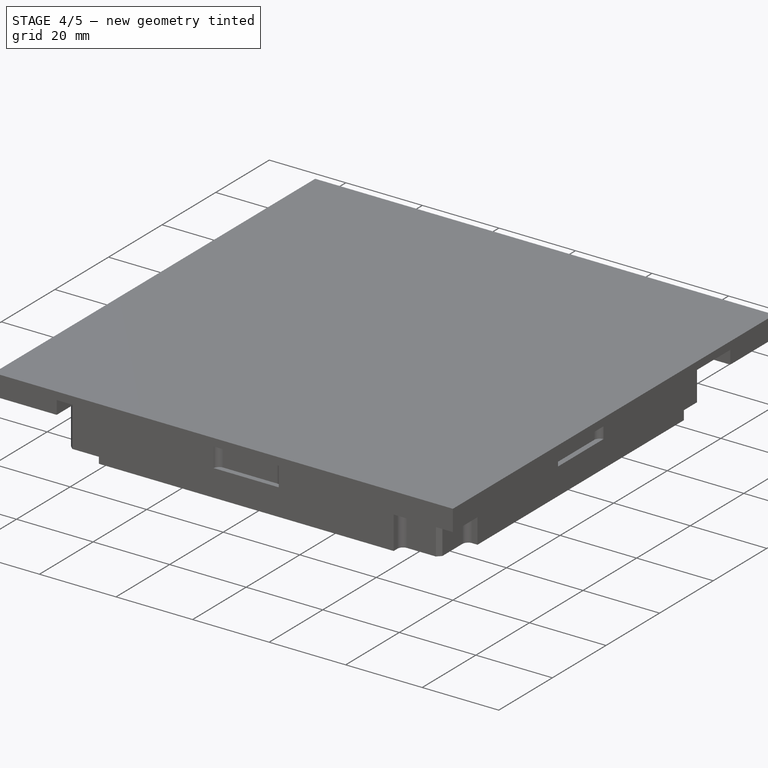
[diagram: stage 4 of 5 — iso view after this stage's code; geometry added in this stage tinted green]
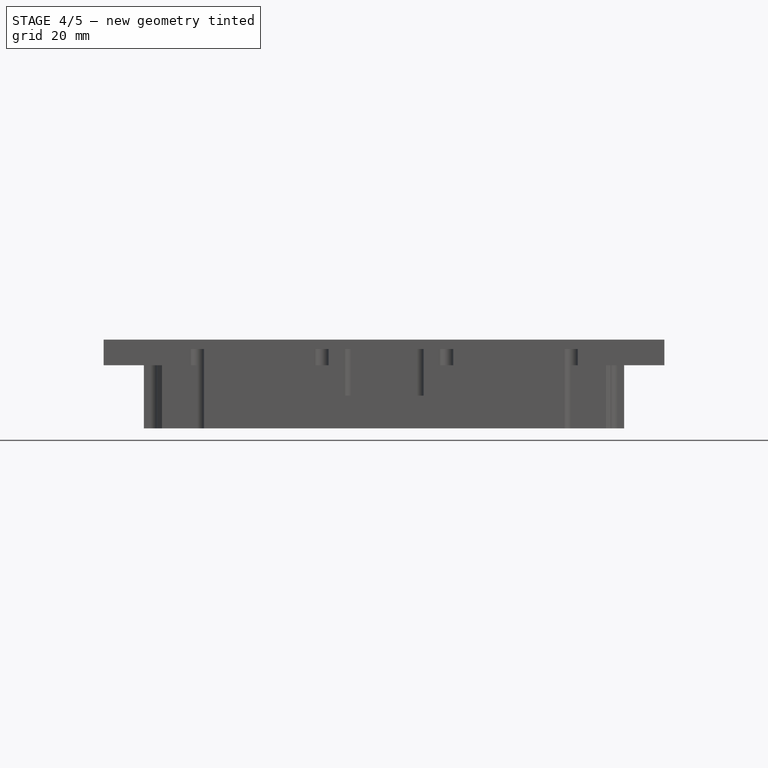
[diagram: stage 4 of 5 — front view after this stage's code; geometry added in this stage tinted green]
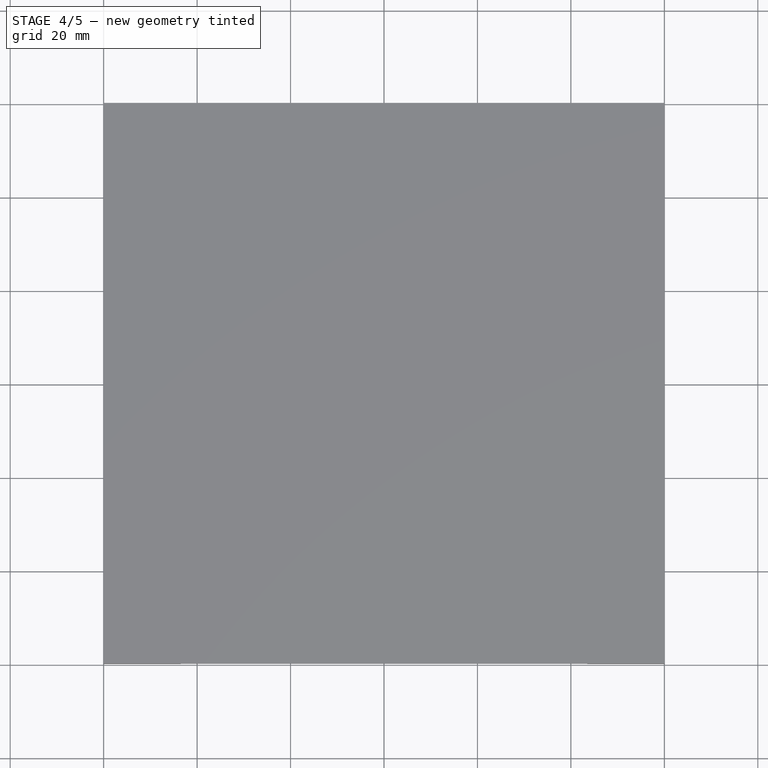
[diagram: stage 4 of 5 — top view after this stage's code; geometry added in this stage tinted green]
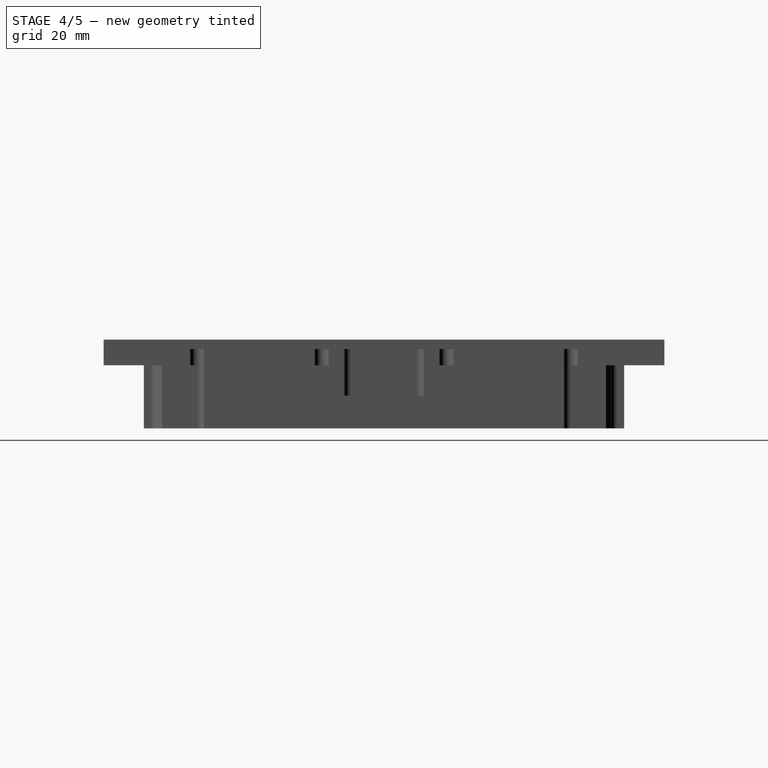
[diagram: stage 4 of 5 — right view after this stage's code; geometry added in this stage tinted green]
FEATURE [PartDesign::Body] Body001  label="Tooling Hole"
  Group = -> [Sketch,Pad001,Sketch002,Pad002,Sketch003,Pad003]
  Origin = -> Origin001
  Tip = -> Pad003
FEATURE [PartDesign::Boolean] Boolean  label="Cut: Tooling Hole"
  BaseFeature = -> Pad
  Group = -> [Body001]
  Refine = true
  Type = 1
FEATURE [PartDesign::Body] Body002  label="PCB Mounting Tube"
  Group = -> [Sketch006,Pad004,Sketch005,Pad005]
  Origin = -> Origin002
  Tip = -> Pad005
FEATURE [PartDesign::Boolean] Boolean001  label="Cut: PCB Mounting Tube"
  BaseFeature = -> Boolean
  Group = -> [Body002]
  Type = 1
FEATURE [PartDesign::Body] Body003  label="Canvas Mounting Hole"
  Group = -> [Sketch007,Pad006,Sketch008,Pad007,Sketch009,Pad008,Chamfer]
  Origin = -> Origin003
  Tip = -> Chamfer
FEATURE [PartDesign::Boolean] Boolean002  label="Cut: Canvas Mounting Hole"
  BaseFeature = -> Boolean001
  Group = -> [Body003]
  Type = 1
FEATURE [PartDesign::Body] Body004  label="Canvas Rib"
  Group = -> [Sketch010,Pad009,Sketch011,Pad010,PolarPattern]
  Origin = -> Origin004
  Tip = -> PolarPattern
FEATURE [PartDesign::Boolean] Boolean003  label="Cut: Canvas Rib"
  BaseFeature = -> Boolean002
  Group = -> [Body004]
  Refine = true
  Type = 1
FEATURE [PartDesign::Body] Body005  label="Canvas Usb"
  Group = -> [Sketch013,Pad011,Sketch012,Pad012,PolarPattern001]
  Origin = -> Origin005
  Tip = -> PolarPattern001
FEATURE [PartDesign::Boolean] Boolean004  label="Cut: Canvas Usb"
  BaseFeature = -> Boolean003
  Group = -> [Body005]
  Type = 1
FEATURE [Sketcher::SketchObject] Sketch014
  MapMode = 5
  Placement = pos=(0,0,17) rot=(0,0,1;0rad)
  Support = -> [Boolean004]
  sketch-geometry (88):
    g0: LineSegment StartX=-18 StartY=37 StartZ=0 EndX=-1 EndY=37 EndZ=0
    g1: LineSegment StartX=-1 StartY=37 StartZ=0 EndX=-1 EndY=31 EndZ=0
    g2: LineSegment StartX=-1 StartY=31 StartZ=0 EndX=-21 EndY=31 EndZ=0
    g3: LineSegment StartX=-31 StartY=21 StartZ=0 EndX=-37 EndY=21 EndZ=0
    g4: LineSegment StartX=-37 StartY=21 StartZ=0 EndX=-37 EndY=1 EndZ=0
    g5: LineSegment StartX=-37 StartY=1 StartZ=0 EndX=-31 EndY=1 EndZ=0
    g6: LineSegment StartX=-31 StartY=1 StartZ=0 EndX=-31 EndY=21 EndZ=0
    g7: LineSegment StartX=-39 StartY=21 StartZ=0 EndX=-45 EndY=21 EndZ=0
    g8: LineSegment StartX=-45 StartY=21 StartZ=0 EndX=-45 EndY=1 EndZ=0
    g9: LineSegment StartX=-45 StartY=1 StartZ=0 EndX=-39 EndY=1 EndZ=0
    g10: LineSegment StartX=-39 StartY=1 StartZ=0 EndX=-39 EndY=21 EndZ=0
    g11: LineSegment StartX=-13 StartY=44 StartZ=0 EndX=-1 EndY=44 EndZ=0
    g12: LineSegment StartX=-1 StartY=44 StartZ=0 EndX=-1 EndY=39 EndZ=0
    g13: LineSegment StartX=-39 StartY=23 StartZ=0 EndX=-45 EndY=23 EndZ=0
    g14: LineSegment StartX=-45 StartY=23 StartZ=0 EndX=-45 EndY=29 EndZ=0
    g15: LineSegment StartX=-45 StartY=29 StartZ=0 EndX=-39 EndY=29 EndZ=0
    g16: LineSegment StartX=-39 StartY=29 StartZ=0 EndX=-39 EndY=23 EndZ=0
    g17: LineSegment StartX=-37 StartY=23 StartZ=0 EndX=-31 EndY=23 EndZ=0
    g18: LineSegment StartX=-31 StartY=23 StartZ=0 EndX=-31 EndY=29 EndZ=0
    g19: LineSegment StartX=-31 StartY=29 StartZ=0 EndX=-37 EndY=29 EndZ=0
    g20: LineSegment StartX=-37 StartY=29 StartZ=0 EndX=-37 EndY=23 EndZ=0
    g21: LineSegment StartX=-45 StartY=31 StartZ=0 EndX=-39 EndY=31 EndZ=0
    g22: LineSegment StartX=-39 StartY=31 StartZ=0 EndX=-39 EndY=37 EndZ=0
    g23: LineSegment StartX=-39 StartY=37 StartZ=0 EndX=-45 EndY=37 EndZ=0
    g24: LineSegment StartX=-45 StartY=37 StartZ=0 EndX=-45 EndY=31 EndZ=0
    g25: LineSegment StartX=-37 StartY=31 StartZ=0 EndX=-31 EndY=31 EndZ=0
    g26: LineSegment StartX=-31 StartY=31 StartZ=0 EndX=-31 EndY=37 EndZ=0
    g27: LineSegment StartX=-31 StartY=37 StartZ=0 EndX=-37 EndY=37 EndZ=0
    g28: LineSegment StartX=-37 StartY=37 StartZ=0 EndX=-37 EndY=31 EndZ=0
    g29: LineSegment StartX=-29 StartY=31 StartZ=0 EndX=-23 EndY=31 EndZ=0
    g30: LineSegment StartX=-26 StartY=37 StartZ=0 EndX=-29 EndY=37 EndZ=0
    g31: LineSegment StartX=-29 StartY=37 StartZ=0 EndX=-29 EndY=31 EndZ=0
    g32: LineSegment StartX=-37 StartY=39 StartZ=0 EndX=-31 EndY=39 EndZ=0
    g33: LineSegment StartX=-31 StartY=39 StartZ=0 EndX=-31 EndY=45 EndZ=0
    g34: LineSegment StartX=-31 StartY=45 StartZ=0 EndX=-37 EndY=45 EndZ=0
    g35: LineSegment StartX=-37 StartY=45 StartZ=0 EndX=-37 EndY=39 EndZ=0
    g36: LineSegment StartX=-21 StartY=29 StartZ=0 EndX=-1 EndY=29 EndZ=0
    g37: LineSegment StartX=-1 StartY=29 StartZ=0 EndX=-1 EndY=23 EndZ=0
    g38: LineSegment StartX=-1 StartY=23 StartZ=0 EndX=-21 EndY=23 EndZ=0
    g39: LineSegment StartX=-21 StartY=23 StartZ=0 EndX=-21 EndY=29 EndZ=0
    g40: LineSegment StartX=-29 StartY=21 StartZ=0 EndX=-23 EndY=21 EndZ=0
    g41: LineSegment StartX=-23 StartY=21 StartZ=0 EndX=-23 EndY=1 EndZ=0
    g42: LineSegment StartX=-23 StartY=1 StartZ=0 EndX=-29 EndY=1 EndZ=0
    g43: LineSegment StartX=-29 StartY=1 StartZ=0 EndX=-29 EndY=21 EndZ=0
    g44: LineSegment StartX=-47 StartY=31 StartZ=0 EndX=-49 EndY=31 EndZ=0
    g45: LineSegment StartX=-49 StartY=31 StartZ=0 EndX=-49 EndY=37 EndZ=0
    g46: LineSegment StartX=-49 StartY=37 StartZ=0 EndX=-47 EndY=37 EndZ=0
    g47: LineSegment StartX=-47 StartY=37 StartZ=0 EndX=-47 EndY=31 EndZ=0
    g48: LineSegment StartX=-49 StartY=29 StartZ=0 EndX=-47 EndY=29 EndZ=0
    g49: LineSegment StartX=-47 StartY=29 StartZ=0 EndX=-47 EndY=23 EndZ=0
    g50: LineSegment StartX=-47 StartY=23 StartZ=0 EndX=-49 EndY=23 EndZ=0
    g51: LineSegment StartX=-49 StartY=23 StartZ=0 EndX=-49 EndY=29 EndZ=0
    g52: LineSegment StartX=-49 StartY=21 StartZ=0 EndX=-47 EndY=21 EndZ=0
    g53: LineSegment StartX=-47 StartY=21 StartZ=0 EndX=-47 EndY=17 EndZ=0
    g54: LineSegment StartX=-47 StartY=17 StartZ=0 EndX=-49 EndY=17 EndZ=0
    g55: LineSegment StartX=-49 StartY=17 StartZ=0 EndX=-49 EndY=21 EndZ=0
    g56: LineSegment StartX=-49 StartY=10 StartZ=0 EndX=-47 EndY=10 EndZ=0
    g57: LineSegment StartX=-47 StartY=10 StartZ=0 EndX=-47 EndY=1 EndZ=0
    g58: LineSegment StartX=-47 StartY=1 StartZ=0 EndX=-49 EndY=1 EndZ=0
    g59: LineSegment StartX=-49 StartY=1 StartZ=0 EndX=-49 EndY=10 EndZ=0
    g60: LineSegment StartX=-1 StartY=46 StartZ=0 EndX=-10 EndY=46 EndZ=0
    g61: LineSegment StartX=-10 StartY=46 StartZ=0 EndX=-10 EndY=48 EndZ=0
    g62: LineSegment StartX=-10 StartY=48 StartZ=0 EndX=-1 EndY=48 EndZ=0
    g63: LineSegment StartX=-1 StartY=48 StartZ=0 EndX=-1 EndY=46 EndZ=0
    g64: LineSegment StartX=-37 StartY=47 StartZ=0 EndX=-31 EndY=47 EndZ=0
    g65: LineSegment StartX=-31 StartY=47 StartZ=0 EndX=-31 EndY=49 EndZ=0
    g66: LineSegment StartX=-31 StartY=49 StartZ=0 EndX=-37 EndY=49 EndZ=0
    g67: LineSegment StartX=-37 StartY=49 StartZ=0 EndX=-37 EndY=47 EndZ=0
    g68: LineSegment StartX=-45 StartY=39 StartZ=0 EndX=-39 EndY=39 EndZ=0
    g69: LineSegment StartX=-39 StartY=39 StartZ=0 EndX=-39 EndY=45 EndZ=0
    g70: LineSegment StartX=-39 StartY=45 StartZ=0 EndX=-41 EndY=43 EndZ=0
    g71: LineSegment StartX=-41 StartY=43 StartZ=0 EndX=-41 EndY=42 EndZ=0
    g72: LineSegment StartX=-41 StartY=42 StartZ=0 EndX=-42 EndY=41 EndZ=0
    g73: LineSegment StartX=-42 StartY=41 StartZ=0 EndX=-43 EndY=41 EndZ=0
    g74: LineSegment StartX=-43 StartY=41 StartZ=0 EndX=-45 EndY=39 EndZ=0
    g75: LineSegment StartX=-23 StartY=31 StartZ=0 EndX=-23 EndY=34 EndZ=0
    g76: LineSegment StartX=-23 StartY=34 StartZ=0 EndX=-26 EndY=37 EndZ=0
    g77: LineSegment StartX=-21 StartY=31 StartZ=0 EndX=-21 EndY=34 EndZ=0
    g78: LineSegment StartX=-21 StartY=34 StartZ=0 EndX=-18 EndY=37 EndZ=0
    g79: LineSegment StartX=-13 StartY=44 StartZ=0 EndX=-15 EndY=42 EndZ=0
    g80: LineSegment StartX=-15 StartY=42 StartZ=0 EndX=-15 EndY=41 EndZ=0
    g81: LineSegment StartX=-15 StartY=41 StartZ=0 EndX=-13 EndY=39 EndZ=0
    g82: LineSegment StartX=-13 StartY=39 StartZ=0 EndX=-1 EndY=39 EndZ=0
    g83: LineSegment StartX=-21 StartY=21 StartZ=0 EndX=-1 EndY=21 EndZ=0
    g84: LineSegment StartX=-1 StartY=21 StartZ=0 EndX=-1 EndY=3 EndZ=0
    g85: LineSegment StartX=-21 StartY=1 StartZ=0 EndX=-21 EndY=21 EndZ=0
    g86: LineSegment StartX=-21 StartY=1 StartZ=0 EndX=-3 EndY=1 EndZ=0
    g87: LineSegment StartX=-3 StartY=1 StartZ=0 EndX=-1 EndY=3 EndZ=0
  constraints (168):
    c: Coincident(g0,g1)
    c: Coincident(g1,g2)
    c: Horizontal(g0)
    c: Horizontal(g2)
    c: Vertical(g1)
    c: Coincident(g3,g4)
    c: Coincident(g4,g5)
    c: Coincident(g5,g6)
    c: Coincident(g6,g3)
    c: Horizontal(g3)
    c: Horizontal(g5)
    c: Vertical(g4)
    c: Vertical(g6)
    c: Coincident(g7,g8)
    c: Coincident(g8,g9)
    c: Coincident(g9,g10)
    c: Coincident(g10,g7)
    c: Horizontal(g7)
    c: Horizontal(g9)
    c: Vertical(g8)
    c: Vertical(g10)
    c: Coincident(g11,g12)
    c: Horizontal(g11)
    c: Vertical(g12)
    c: Coincident(g13,g14)
    c: Coincident(g14,g15)
    c: Coincident(g15,g16)
    c: Coincident(g16,g13)
    c: Horizontal(g13)
    c: Horizontal(g15)
    c: Vertical(g14)
    c: Vertical(g16)
    c: Coincident(g17,g18)
    c: Coincident(g18,g19)
    c: Coincident(g19,g20)
    c: Coincident(g20,g17)
    c: Horizontal(g17)
    c: Horizontal(g19)
    c: Vertical(g18)
    c: Vertical(g20)
    c: Coincident(g21,g22)
    c: Coincident(g22,g23)
    c: Coincident(g23,g24)
    c: Coincident(g24,g21)
    c: Horizontal(g21)
    c: Horizontal(g23)
    c: Vertical(g22)
    c: Vertical(g24)
    c: Coincident(g25,g26)
    c: Coincident(g26,g27)
    c: Coincident(g27,g28)
    c: Coincident(g28,g25)
    c: Horizontal(g25)
    c: Horizontal(g27)
    c: Vertical(g26)
    c: Vertical(g28)
    c: Coincident(g30,g31)
    c: Coincident(g31,g29)
    c: Horizontal(g29)
    c: Horizontal(g30)
    c: Vertical(g31)
    c: Coincident(g32,g33)
    c: Coincident(g33,g34)
    c: Coincident(g34,g35)
    c: Coincident(g35,g32)
    c: Horizontal(g32)
    c: Horizontal(g34)
    c: Vertical(g33)
    c: Vertical(g35)
    c: Coincident(g36,g37)
    c: Coincident(g37,g38)
    c: Coincident(g38,g39)
    c: Coincident(g39,g36)
    c: Horizontal(g36)
    c: Horizontal(g38)
    c: Vertical(g37)
    c: Vertical(g39)
    c: Coincident(g40,g41)
    c: Coincident(g41,g42)
    c: Coincident(g42,g43)
    c: Coincident(g43,g40)
    c: Horizontal(g40)
    c: Horizontal(g42)
    c: Vertical(g41)
    c: Vertical(g43)
    c: Coincident(g44,g45)
    c: Coincident(g45,g46)
    c: Coincident(g46,g47)
    c: Coincident(g47,g44)
    c: Horizontal(g44)
    c: Horizontal(g46)
    c: Vertical(g45)
    c: Vertical(g47)
    c: Coincident(g48,g49)
    c: Coincident(g49,g50)
    c: Coincident(g50,g51)
    c: Coincident(g51,g48)
    c: Horizontal(g48)
    c: Horizontal(g50)
    c: Vertical(g49)
    c: Vertical(g51)
    c: Coincident(g52,g53)
    c: Coincident(g53,g54)
    c: Coincident(g54,g55)
    c: Coincident(g55,g52)
    c: Horizontal(g52)
    c: Horizontal(g54)
    c: Vertical(g53)
    c: Vertical(g55)
    c: Coincident(g56,g57)
    c: Coincident(g57,g58)
    c: Coincident(g58,g59)
    c: Coincident(g59,g56)
    c: Horizontal(g56)
    c: Horizontal(g58)
    c: Vertical(g57)
    c: Vertical(g59)
    c: Coincident(g60,g61)
    c: Coincident(g61,g62)
    c: Coincident(g62,g63)
    c: Coincident(g63,g60)
    c: Horizontal(g60)
    c: Horizontal(g62)
    c: Vertical(g61)
    c: Vertical(g63)
    c: Coincident(g64,g65)
    c: Coincident(g65,g66)
    c: Coincident(g66,g67)
    c: Coincident(g67,g64)
    c: Horizontal(g64)
    c: Horizontal(g66)
    c: Vertical(g65)
    c: Vertical(g67)
    c: Horizontal(g68)
    c: Coincident(g68,g69)
    c: Vertical(g69)
    c: Coincident(g69,g70)
    c: Coincident(g70,g71)
    c: Vertical(g71)
    c: Coincident(g71,g72)
    c: Coincident(g72,g73)
    c: Horizontal(g73)
    c: Coincident(g73,g74)
    c: Coincident(g74,g68)
    c: Coincident(g29,g75)
    c: Vertical(g75)
    c: Coincident(g75,g76)
    c: Coincident(g76,g30)
    c: Coincident(g2,g77)
    c: Vertical(g77)
    c: Coincident(g77,g78)
    c: Coincident(g78,g0)
    c: Coincident(g11,g79)
    c: Coincident(g79,g80)
    c: Vertical(g80)
    c: Coincident(g80,g81)
    c: Coincident(g81,g82)
    c: Coincident(g82,g12)
    c: Horizontal(g82)
    c: Coincident(g83,g84)
    c: Coincident(g85,g83)
    c: Horizontal(g83)
    c: Vertical(g84)
    c: Vertical(g85)
    c: Coincident(g85,g86)
    c: Horizontal(g86)
    c: Coincident(g86,g87)
    c: Coincident(g87,g84)
FEATURE [PartDesign::Pocket] Pocket
  BaseFeature = -> Boolean004
  Length = 5
  Length2 = 100
  Profile = -> Sketch014
  Type = 1
FEATURE [PartDesign::Mirrored] Mirrored
  MirrorPlane = -> Sketch014 [V_Axis]
FEATURE [PartDesign::Mirrored] Mirrored001
  MirrorPlane = -> XZ_Plane
FEATURE [PartDesign::MultiTransform] MultiTransform
  BaseFeature = -> Pocket
  Originals = -> [Pocket]
  Transformations = -> [Mirrored,Mirrored001]
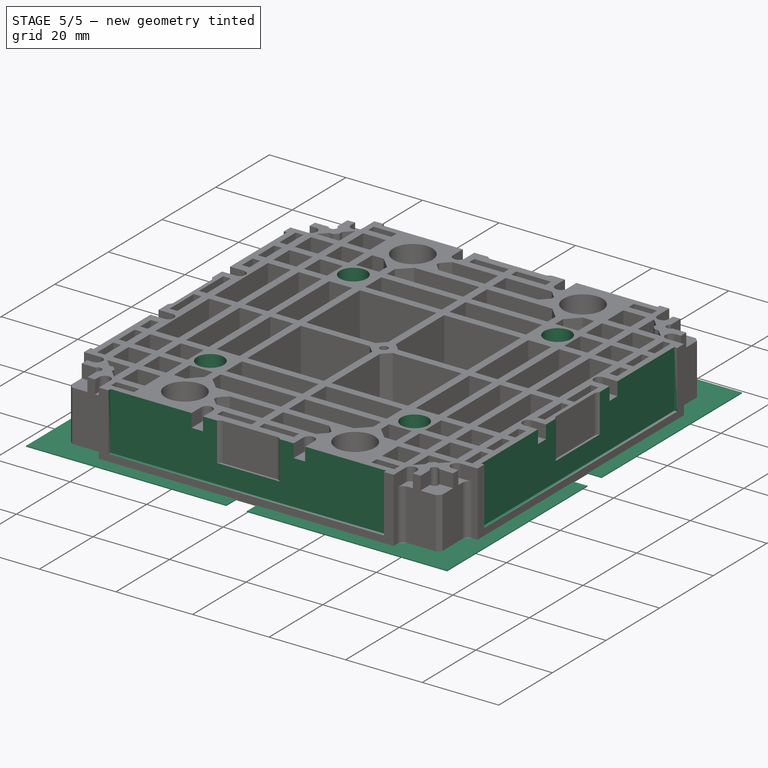
[diagram: stage 5 of 5 — iso view after this stage's code; geometry added in this stage tinted green]
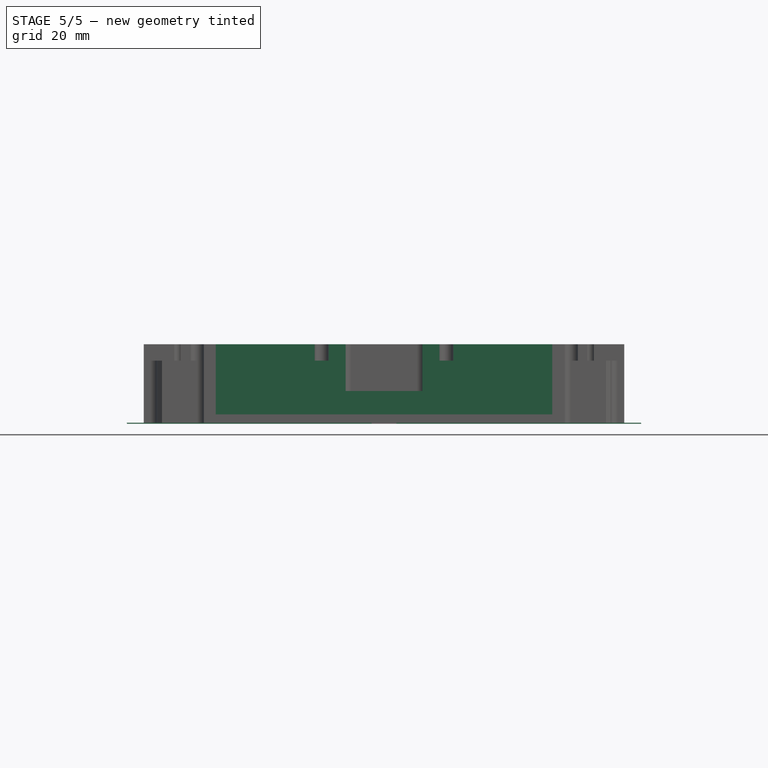
[diagram: stage 5 of 5 — front view after this stage's code; geometry added in this stage tinted green]
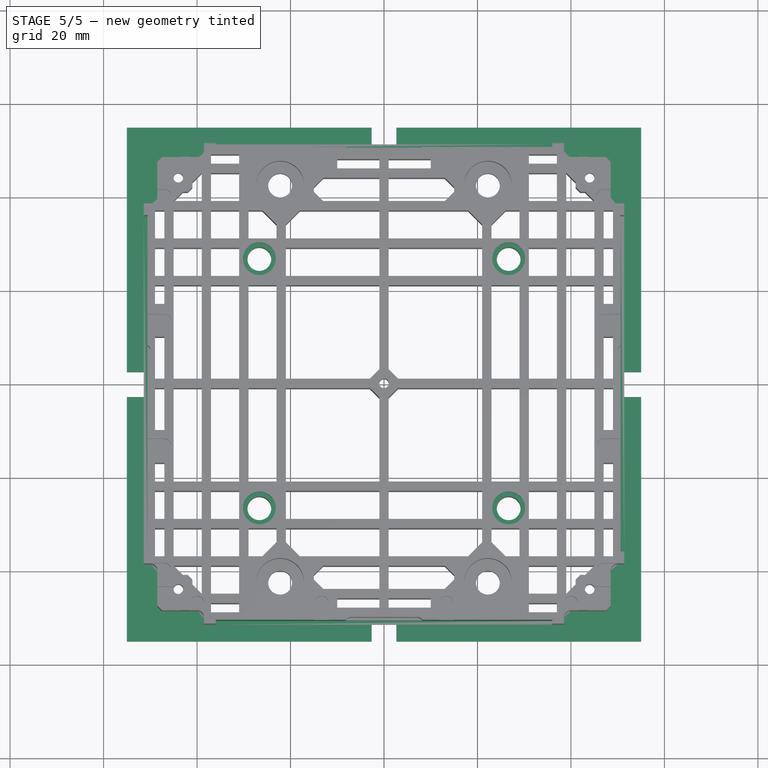
[diagram: stage 5 of 5 — top view after this stage's code; geometry added in this stage tinted green]
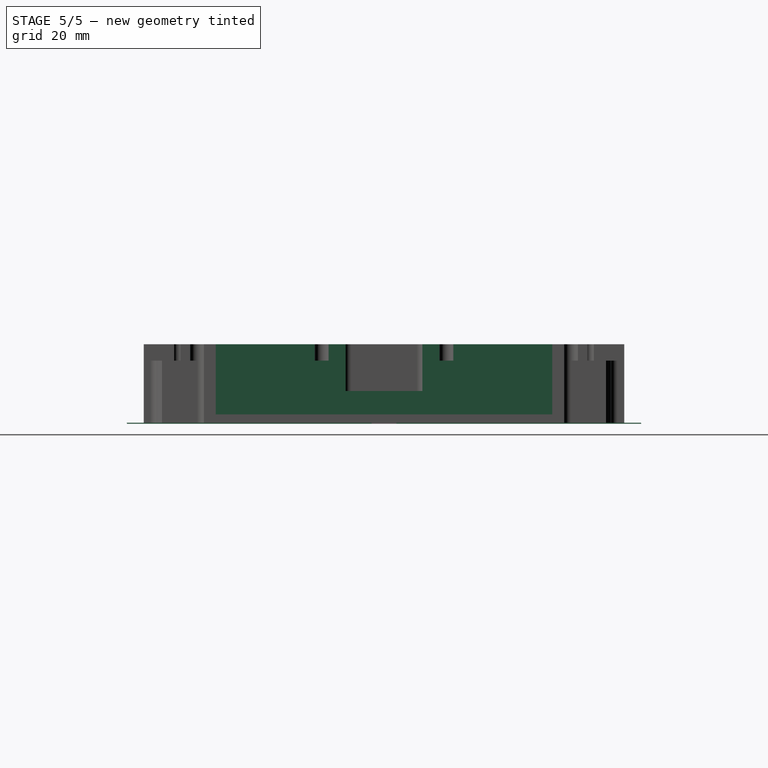
[diagram: stage 5 of 5 — right view after this stage's code; geometry added in this stage tinted green]
FEATURE [Sketcher::SketchObject] Sketch015
  MapMode = 5
  Placement = pos=(51.4,0,0) rot=(0.57735,0.57735,0.57735;2.0944rad)
  Support = -> [MultiTransform]
  sketch-geometry (6):
    g0: LineSegment StartX=-36 StartY=17 StartZ=0 EndX=36 EndY=17 EndZ=0
    g1: LineSegment StartX=36 StartY=17 StartZ=0 EndX=36 EndY=2 EndZ=0
    g2: LineSegment StartX=36 StartY=2 StartZ=0 EndX=-36 EndY=2 EndZ=0
    g3: LineSegment StartX=-36 StartY=2 StartZ=0 EndX=-36 EndY=17 EndZ=0
    g4: LineSegment [constr] StartX=-36 StartY=2 StartZ=0 EndX=0 EndY=0 EndZ=0
    g5: LineSegment [constr] StartX=36 StartY=2 StartZ=0 EndX=0 EndY=0 EndZ=0
  constraints (16):
    c: Coincident(g0,g1)
    c: Coincident(g1,g2)
    c: Coincident(g2,g3)
    c: Coincident(g3,g0)
    c: Horizontal(g0)
    c: Horizontal(g2)
    c: Vertical(g1)
    c: Vertical(g3)
    c: Coincident(g4,g2)
    c: Coincident(g4,g-1)
    c: Coincident(g5,g1)
    c: Coincident(g5,g-1)
    c: Equal(g5,g4)
    c: DistanceX(g2,g2) = 72
    c: DistanceY(g-1,g2) = 2
    c: DistanceY(g3,g3) = 15
FEATURE [PartDesign::Pocket] Pocket001
  BaseFeature = -> MultiTransform
  Length = 0.8
  Length2 = 100
  Profile = -> Sketch015
  Type = 0
FEATURE [PartDesign::PolarPattern] PolarPattern002
  Angle = 360
  Axis = -> Z_Axis
  BaseFeature = -> Pocket001
  Occurrences = 4
  Originals = -> [Pocket001]
FEATURE [PartDesign::Body] Body006  label="Canvas Corner"
  Group = -> [Sketch017,Pad013,Sketch016,Pad014,PolarPattern003]
  Origin = -> Origin006
  Tip = -> PolarPattern003
FEATURE [PartDesign::Boolean] Boolean005  label="Cut: Canvas Corner"
  BaseFeature = -> PolarPattern002
  Group = -> [Body006]
  Type = 1
FEATURE [Sketcher::SketchObject] Sketch018
  MapMode = 5
  Placement = pos=(0,0,0) rot=(1,0,0;3.14159rad)
  Support = -> [Boolean005]
  sketch-geometry (13):
    g0: LineSegment StartX=-2.64785 StartY=55 StartZ=0 EndX=-55 EndY=55 EndZ=0
    g1: LineSegment StartX=-55 StartY=55 StartZ=0 EndX=-55 EndY=2.64785 EndZ=0
    g2: LineSegment StartX=-55 StartY=2.64785 StartZ=0 EndX=-49.4879 EndY=2.64785 EndZ=0
    g3: LineSegment StartX=-49.4879 StartY=2.64785 StartZ=0 EndX=-49.4879 EndY=37.1695 EndZ=0
    g4: LineSegment StartX=-49.4879 StartY=37.1695 StartZ=0 EndX=-47.3727 EndY=38.6237 EndZ=0
    g5: LineSegment StartX=-47.3727 StartY=38.6237 StartZ=0 EndX=-46.9761 EndY=46.9524 EndZ=0
    g6: LineSegment StartX=-46.9761 StartY=46.9524 StartZ=0 EndX=-40.6304 EndY=47.6134 EndZ=0
    g7: LineSegment StartX=-40.6304 StartY=47.6134 StartZ=0 EndX=-37.7219 EndY=48.4066 EndZ=0
    g8: LineSegment StartX=-37.7219 StartY=48.4066 StartZ=0 EndX=-37.3253 EndY=50.2574 EndZ=0
    g9: LineSegment StartX=-37.3253 StartY=50.2574 StartZ=0 EndX=-2.64785 EndY=50.2574 EndZ=0
    g10: LineSegment StartX=-2.64785 StartY=50.2574 StartZ=0 EndX=-2.64785 EndY=55 EndZ=0
    g11: LineSegment [constr] StartX=-55 StartY=2.64785 StartZ=0 EndX=0 EndY=0 EndZ=0
    g12: LineSegment [constr] StartX=0 StartY=0 StartZ=0 EndX=-2.64785 EndY=55 EndZ=0
  constraints (24):
    c: Horizontal(g0)
    c: Coincident(g0,g1)
    c: Vertical(g1)
    c: Coincident(g1,g2)
    c: Horizontal(g2)
    c: Coincident(g2,g3)
    c: Vertical(g3)
    c: Coincident(g3,g4)
    c: Coincident(g4,g5)
    c: Coincident(g5,g6)
    c: Coincident(g6,g7)
    c: Coincident(g7,g8)
    c: Coincident(g8,g9)
    c: Horizontal(g9)
    c: Coincident(g9,g10)
    c: Coincident(g10,g0)
    c: Vertical(g10)
    c: Equal(g0,g1)
    c: Coincident(g1,g11)
    c: Coincident(g11,g-1)
    c: Coincident(g11,g12)
    c: Coincident(g12,g0)
    c: Equal(g12,g11)
    c: DistanceY(g-1,g0) = 55
FEATURE [PartDesign::Pad] Pad015
  BaseFeature = -> Boolean005
  Length = 0.2
  Length2 = 100
  Profile = -> Sketch018
  Reversed = true
  Type = 0
FEATURE [PartDesign::PolarPattern] PolarPattern004
  Angle = 360
  Axis = -> Sketch018 [N_Axis]
  BaseFeature = -> Pad015
  Occurrences = 4
  Originals = -> [Pad015]
  Refine = true
FEATURE [App::VRMLObject] touch_probe
FEATURE [App::Part] Part
  Group = -> [touch_probe]
  Origin = -> Origin007
  Placement = pos=(0,50.6,16.75) rot=(1,0,0;1.5708rad)
FEATURE [Sketcher::SketchObject] Sketch019
  ExternalGeometry = -> [PolarPattern004]
  MapMode = 5
  Placement = pos=(0,0,17) rot=(0,0,1;0rad)
  Support = -> [PolarPattern004]
  sketch-geometry (4):
    g0: Circle CenterX=-26.67 CenterY=26.67 CenterZ=0 NormalX=0 NormalY=0 NormalZ=1 AngleXU=0 Radius=3.5
    g1: Circle CenterX=26.67 CenterY=26.67 CenterZ=0 NormalX=0 NormalY=0 NormalZ=1 AngleXU=0 Radius=3.5
    g2: Circle CenterX=26.67 CenterY=-26.67 CenterZ=0 NormalX=0 NormalY=0 NormalZ=1 AngleXU=0 Radius=3.5
    g3: Circle CenterX=-26.67 CenterY=-26.67 CenterZ=0 NormalX=0 NormalY=0 NormalZ=1 AngleXU=0 Radius=3.5
  constraints (8):
    c: Coincident(g0,g-3)
    c: Coincident(g1,g-4)
    c: Coincident(g2,g-5)
    c: Coincident(g3,g-6)
    c: Diameter(g0) = 7
    c: Equal(g0,g3)
    c: Equal(g0,g2)
    c: Equal(g0,g1)
FEATURE [PartDesign::Pocket] Pocket002
  BaseFeature = -> PolarPattern004
  Length = 3.5
  Length2 = 100
  Profile = -> Sketch019
  Type = 0
FEATURE [PartDesign::Body] Body  label="Base"
  Group = -> [Sketch001,Pad,Boolean,Boolean001,Boolean002,Boolean003,Boolean004,Sketch014,Pocket,MultiTransform,Mirrored,Mirrored001,Sketch015,Pocket001,PolarPattern002,Boolean005,Sketch018,Pad015,PolarPattern004,Sketch019,Pocket002]
  Origin = -> Origin
  Tip = -> Pocket002
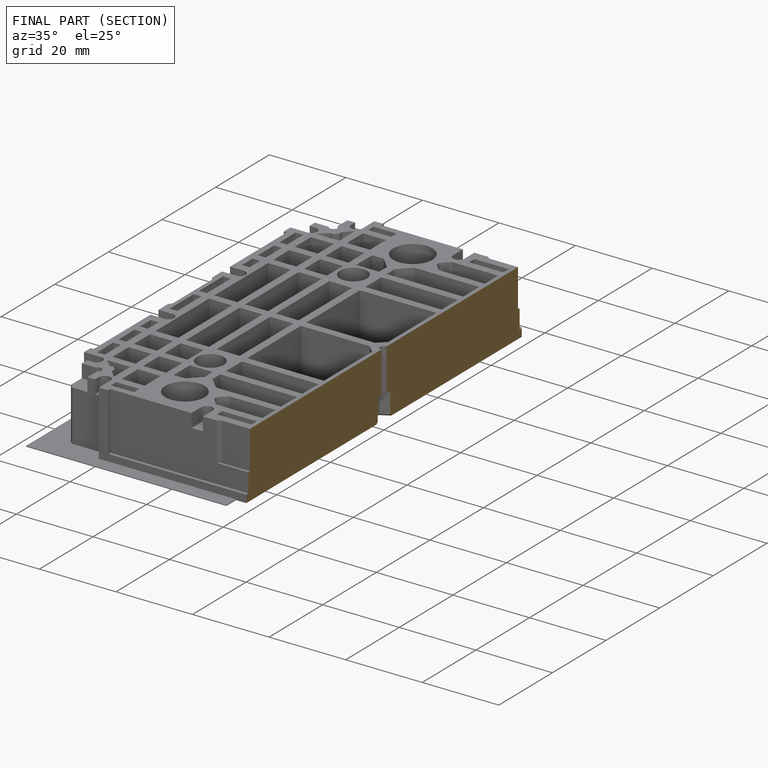
[diagram: finished part — half-section view (interior)]
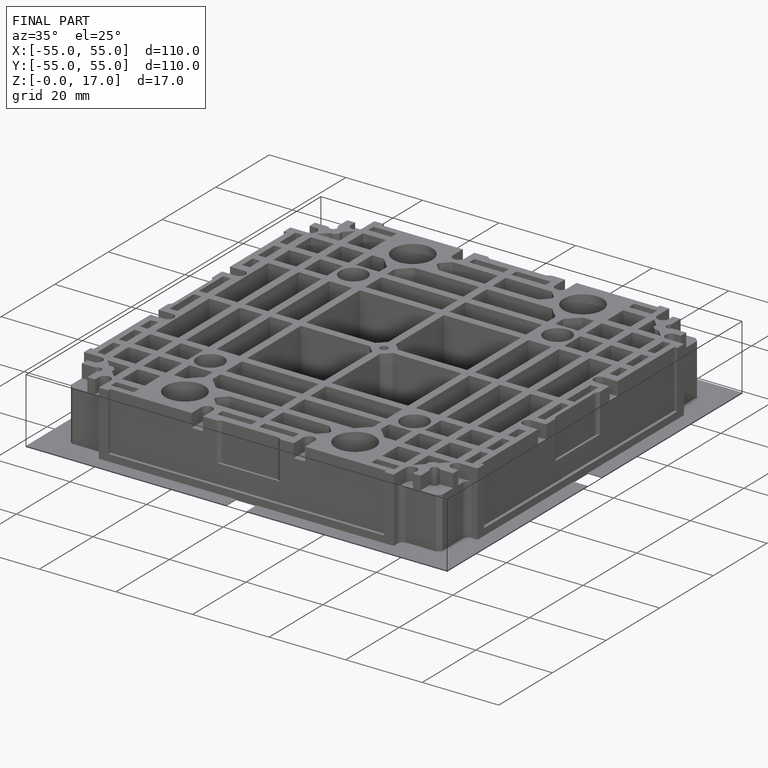
[diagram: finished part — iso view with bounding-box wireframe]
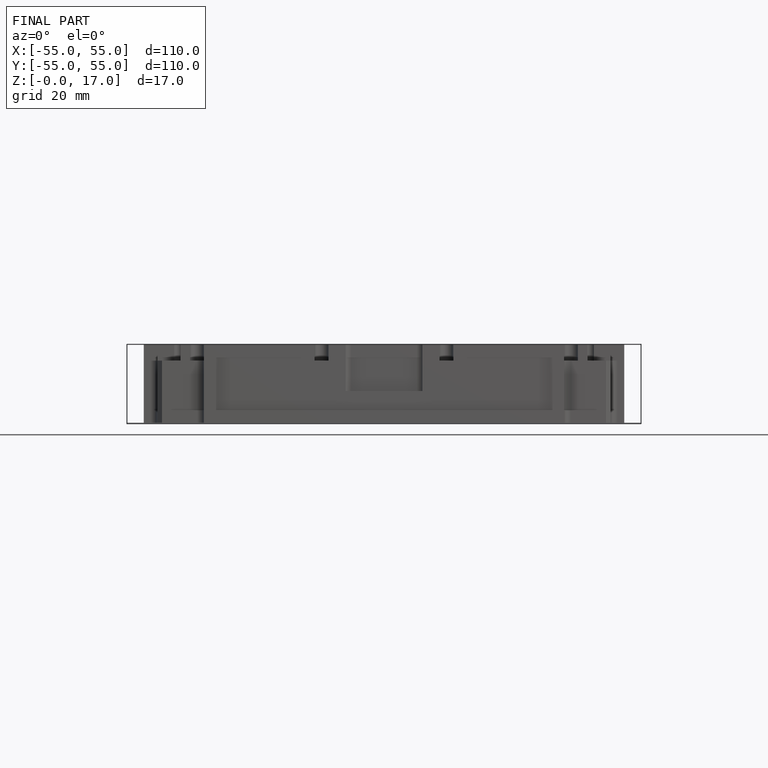
[diagram: finished part — front view with bounding-box wireframe]
